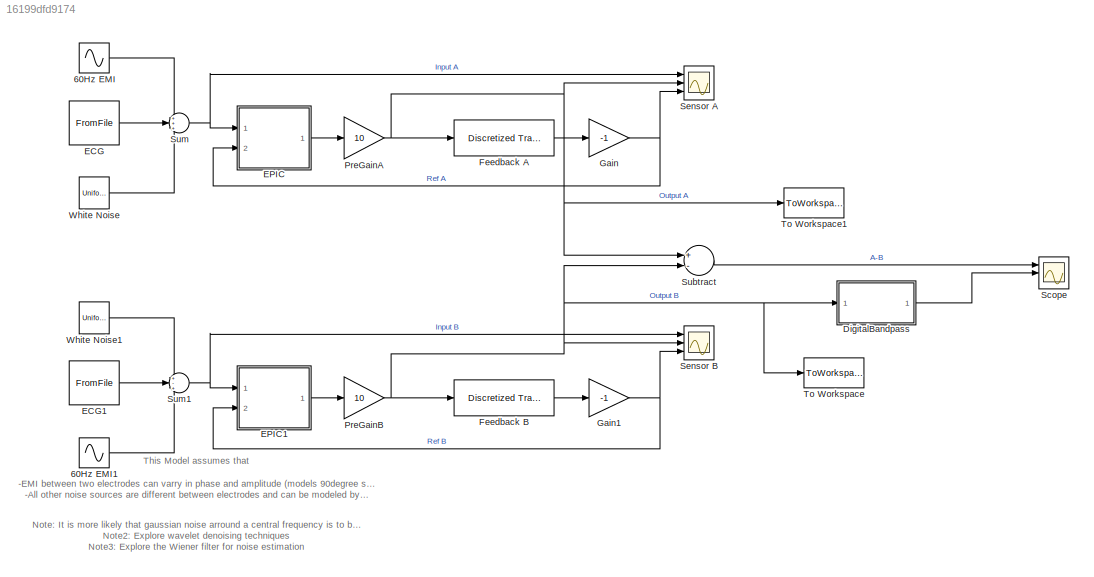
MODEL slx_16199dfd9174
KIND model
CONFIG AbsTol = auto
CONFIG EnableMultiTasking = on
CONFIG FixedStep = 0.0001
CONFIG MaxStep = auto
CONFIG MinStep = auto
CONFIG RelTol = 1e-3
CONFIG SampleTimeConstraint = Unconstrained
CONFIG Solver = ode15s
CONFIG SolverName = ode15s
CONFIG StartTime = 0.0
CONFIG StopTime = 7
BLOCK [Sin] 60Hz EMI
  Amplitude = 0.3
  Frequency = 377
  Ports = [0, 1]
  SampleTime = 0.0001
BLOCK [Sin] 60Hz EMI1
  Amplitude = 0.35
  Frequency = 377
  Phase = 1.97
  Ports = [0, 1]
  SampleTime = 0.0001
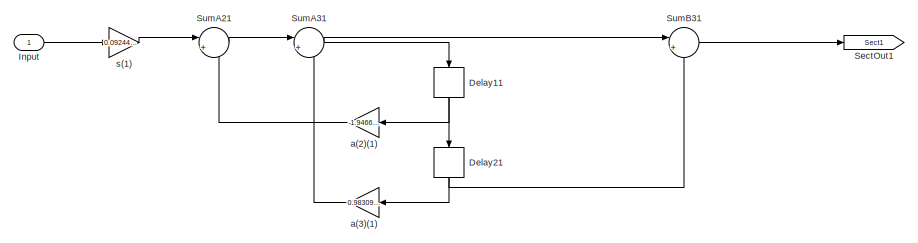
[diagram: DigitalBandpass - part 1/33, left side, full height]
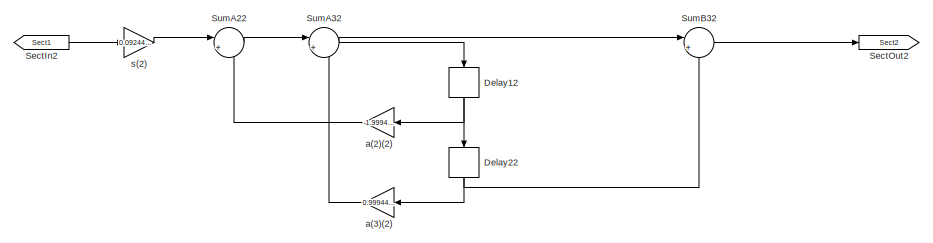
[diagram: DigitalBandpass - part 2/33, left side, full height]
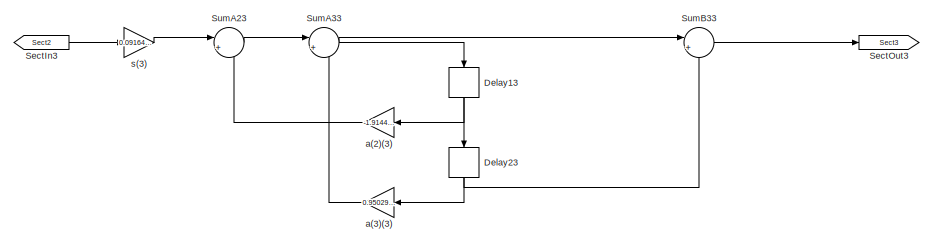
[diagram: DigitalBandpass - part 3/33, left side, full height]
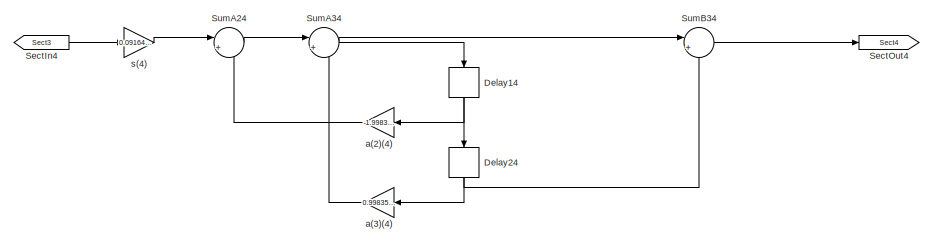
[diagram: DigitalBandpass - part 4/33, left side, full height]
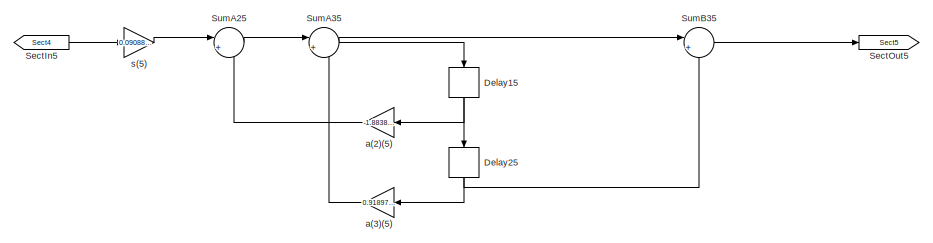
[diagram: DigitalBandpass - part 5/33, left side, full height]
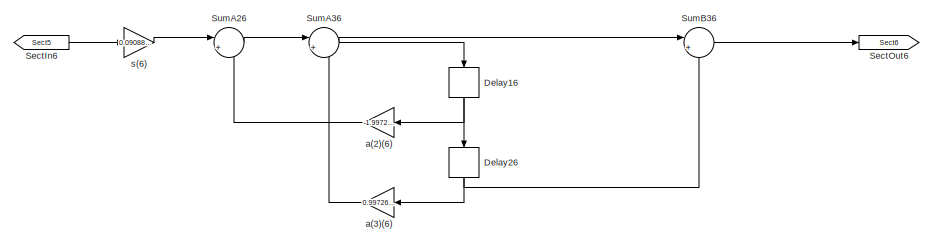
[diagram: DigitalBandpass - part 6/33, left side, full height]
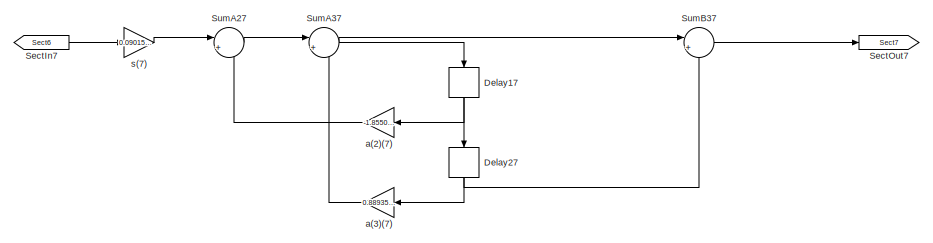
[diagram: DigitalBandpass - part 7/33, left side, full height]
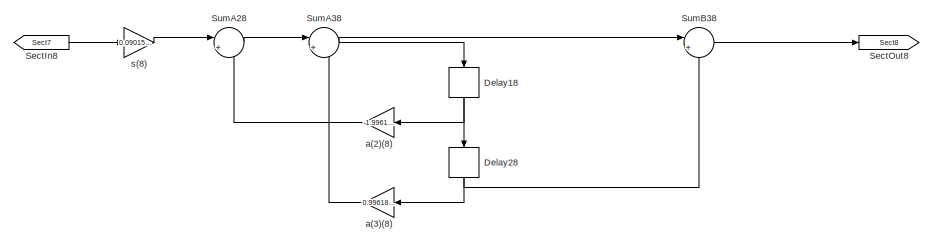
[diagram: DigitalBandpass - part 8/33, left side, full height]
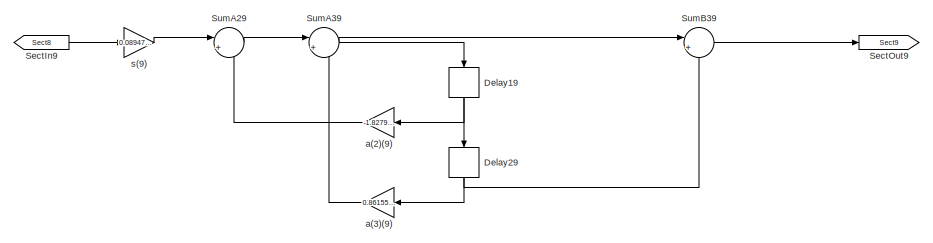
[diagram: DigitalBandpass - part 9/33, left side, full height]
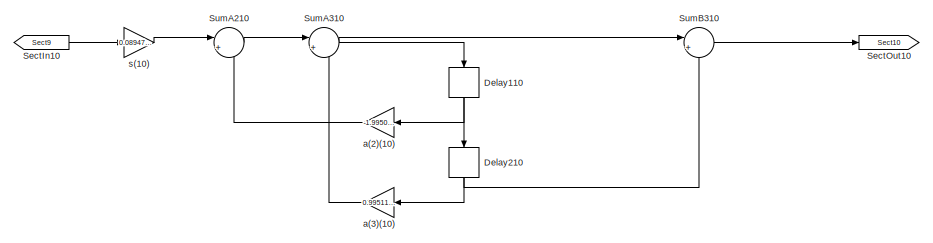
[diagram: DigitalBandpass - part 10/33, left side, full height]
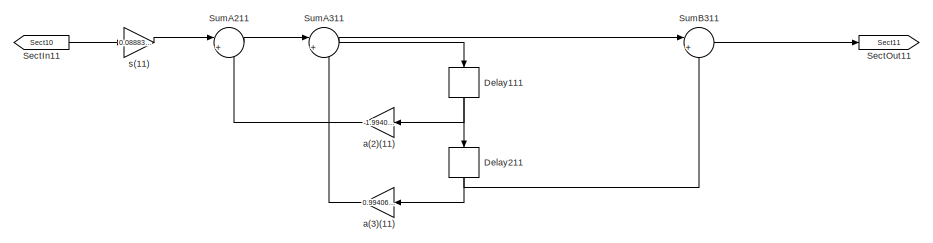
[diagram: DigitalBandpass - part 11/33, left side, full height]
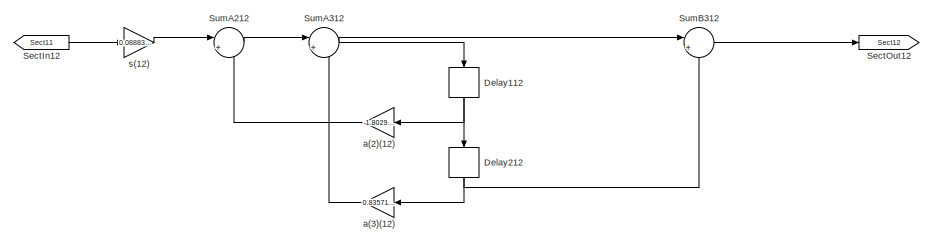
[diagram: DigitalBandpass - part 12/33, center side, full height]
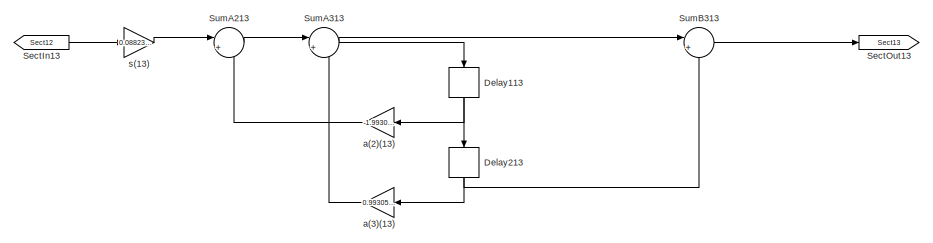
[diagram: DigitalBandpass - part 13/33, center side, full height]
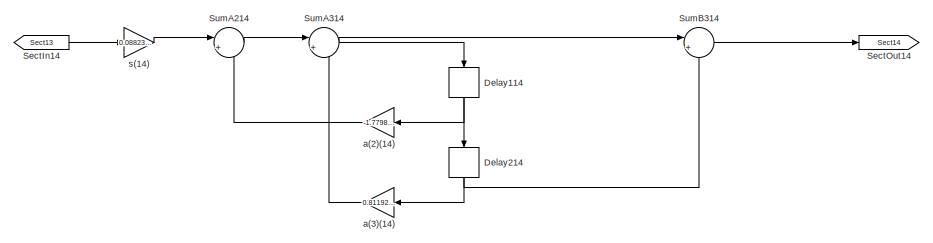
[diagram: DigitalBandpass - part 14/33, center side, full height]
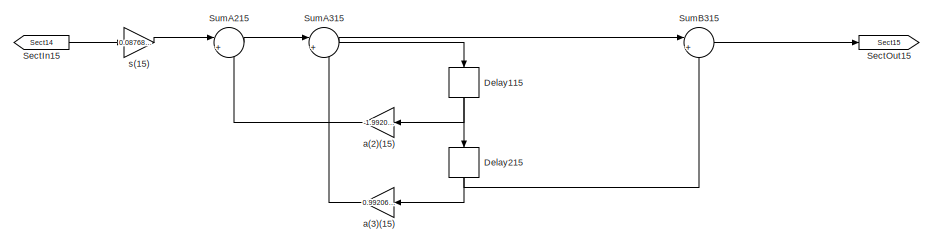
[diagram: DigitalBandpass - part 15/33, center side, full height]
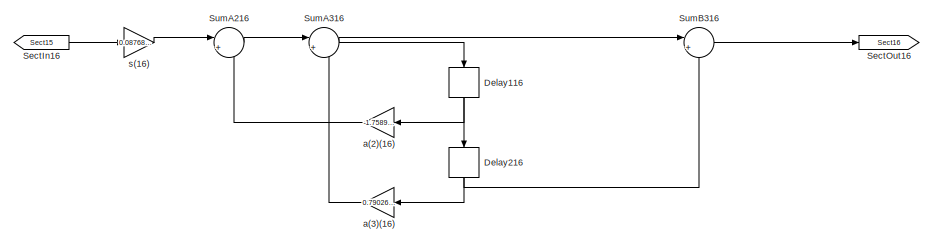
[diagram: DigitalBandpass - part 16/33, center side, full height]
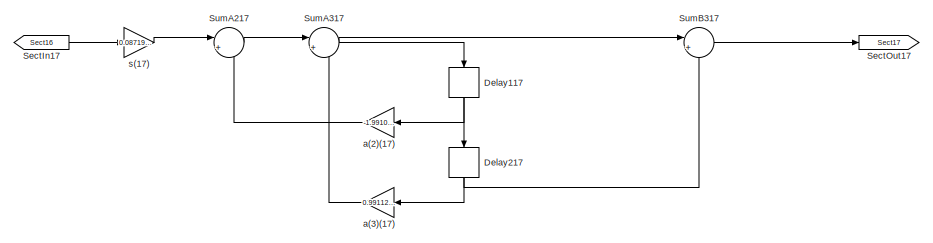
[diagram: DigitalBandpass - part 17/33, center side, full height]
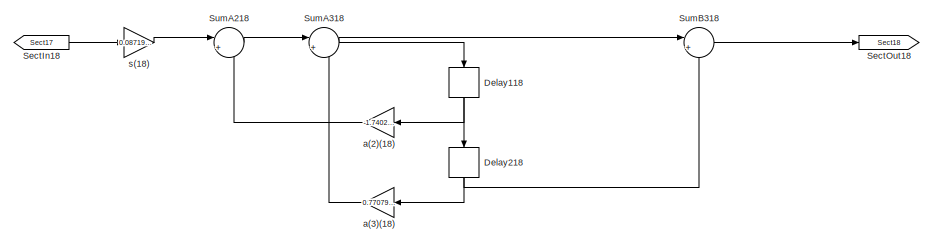
[diagram: DigitalBandpass - part 18/33, center side, full height]
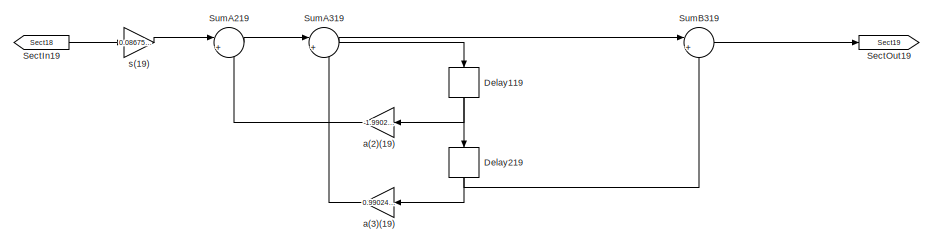
[diagram: DigitalBandpass - part 19/33, center side, full height]
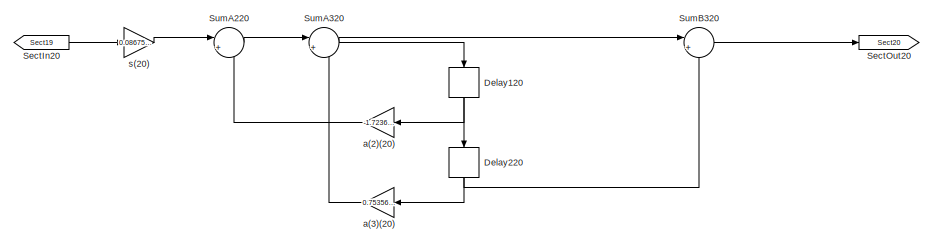
[diagram: DigitalBandpass - part 20/33, center side, full height]
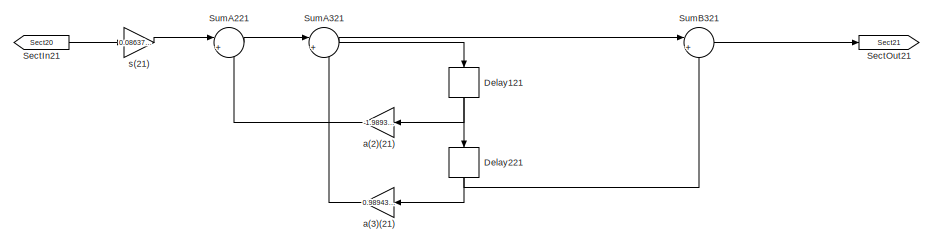
[diagram: DigitalBandpass - part 21/33, center side, full height]
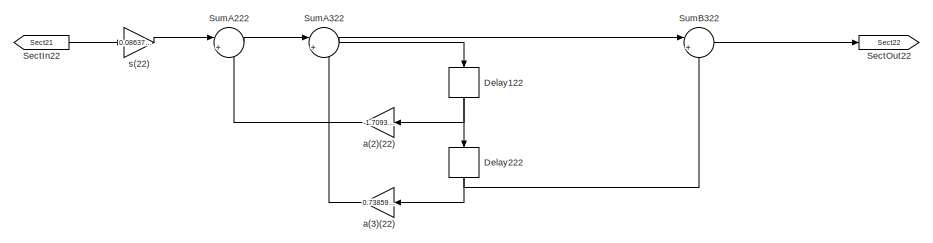
[diagram: DigitalBandpass - part 22/33, center side, full height]
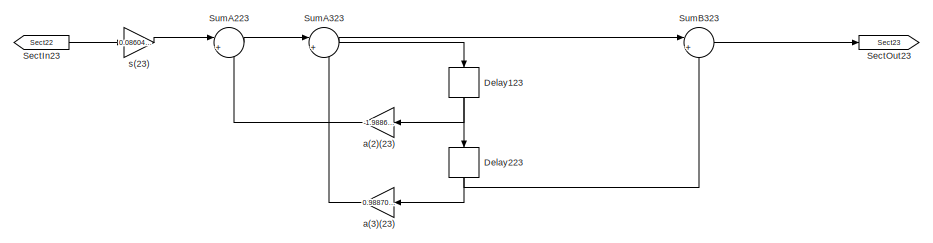
[diagram: DigitalBandpass - part 23/33, right side, full height]
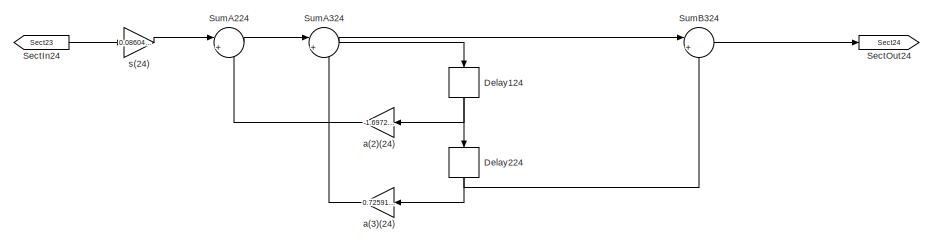
[diagram: DigitalBandpass - part 24/33, right side, full height]
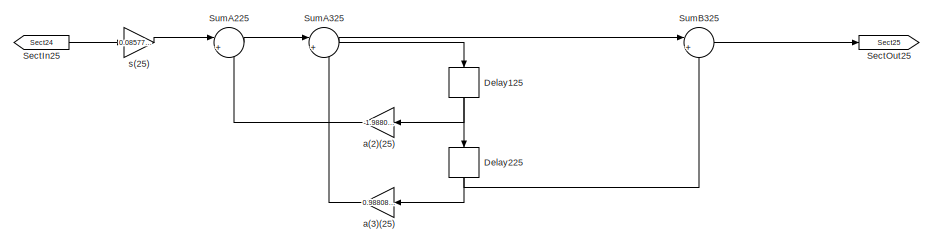
[diagram: DigitalBandpass - part 25/33, right side, full height]
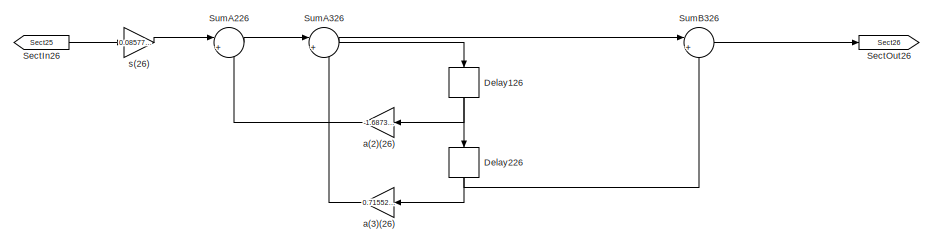
[diagram: DigitalBandpass - part 26/33, right side, full height]
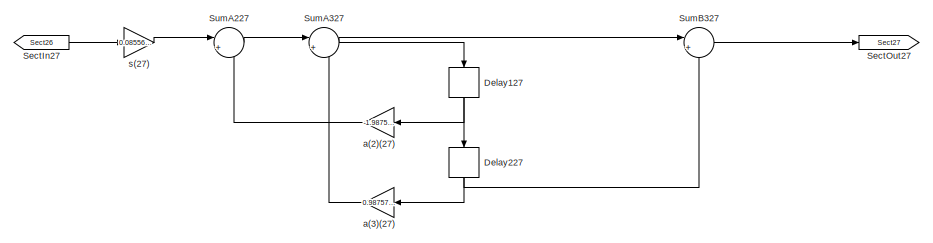
[diagram: DigitalBandpass - part 27/33, right side, full height]
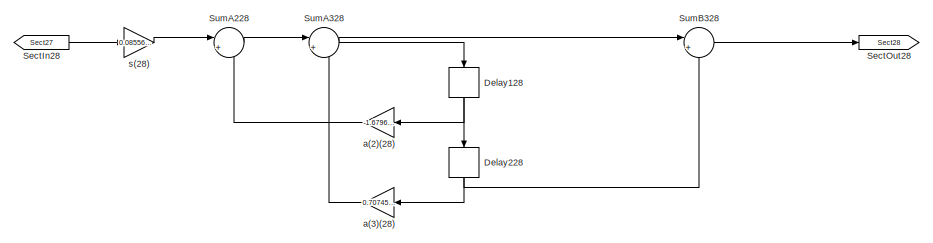
[diagram: DigitalBandpass - part 28/33, right side, full height]
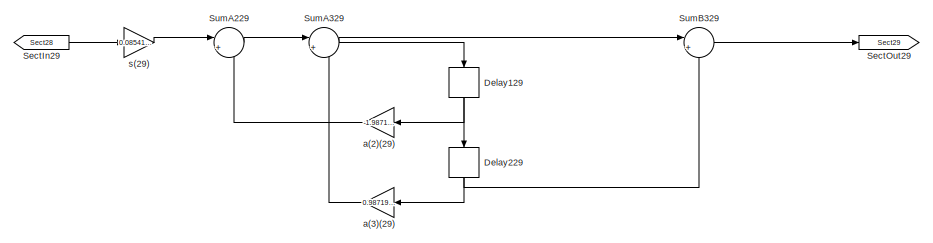
[diagram: DigitalBandpass - part 29/33, right side, full height]
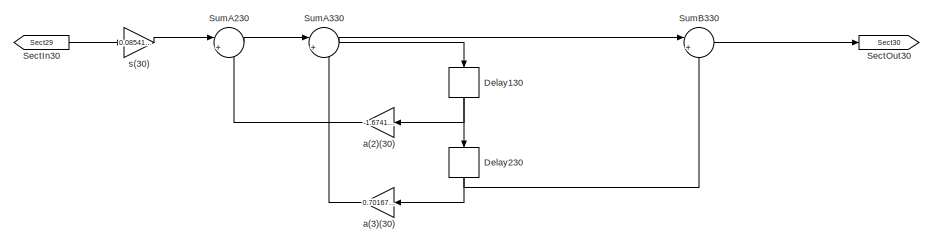
[diagram: DigitalBandpass - part 30/33, right side, full height]
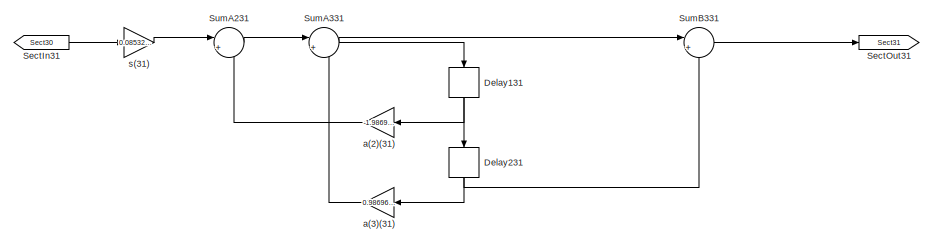
[diagram: DigitalBandpass - part 31/33, right side, full height]
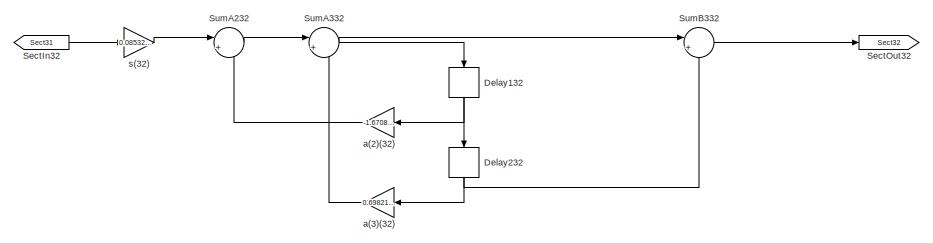
[diagram: DigitalBandpass - part 32/33, right side, full height]
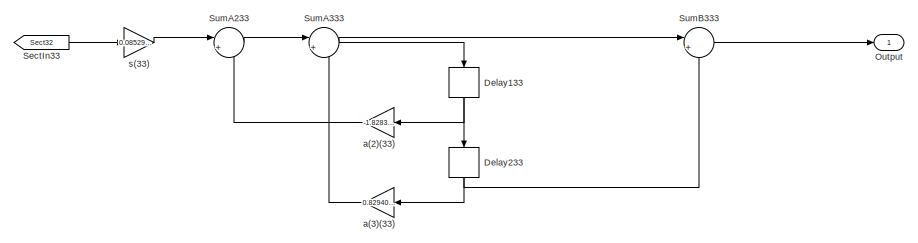
[diagram: DigitalBandpass - part 33/33, right side, full height]
BLOCK [SubSystem] DigitalBandpass
  ErrorFcn = dspFilterRealizedInBasicElemsAlgLoopErrFcnCallback
  Ports = [1, 1]
  RequestExecContextInheritance = off
  Tag = FilterWizardSubSystem
  UserDataPersistent = on
BLOCK [Delay] DigitalBandpass/Delay11
  DelayLength = 1
  InitialCondition = 0
  InputPortMap = u0
  Ports = [1, 1]
BLOCK [Delay] DigitalBandpass/Delay110
  DelayLength = 1
  InitialCondition = 0
  InputPortMap = u0
  Ports = [1, 1]
BLOCK [Delay] DigitalBandpass/Delay111
  DelayLength = 1
  InitialCondition = 0
  InputPortMap = u0
  Ports = [1, 1]
BLOCK [Delay] DigitalBandpass/Delay112
  DelayLength = 1
  InitialCondition = 0
  InputPortMap = u0
  Ports = [1, 1]
BLOCK [Delay] DigitalBandpass/Delay113
  DelayLength = 1
  InitialCondition = 0
  InputPortMap = u0
  Ports = [1, 1]
BLOCK [Delay] DigitalBandpass/Delay114
  DelayLength = 1
  InitialCondition = 0
  InputPortMap = u0
  Ports = [1, 1]
BLOCK [Delay] DigitalBandpass/Delay115
  DelayLength = 1
  InitialCondition = 0
  InputPortMap = u0
  Ports = [1, 1]
BLOCK [Delay] DigitalBandpass/Delay116
  DelayLength = 1
  InitialCondition = 0
  InputPortMap = u0
  Ports = [1, 1]
BLOCK [Delay] DigitalBandpass/Delay117
  DelayLength = 1
  InitialCondition = 0
  InputPortMap = u0
  Ports = [1, 1]
BLOCK [Delay] DigitalBandpass/Delay118
  DelayLength = 1
  InitialCondition = 0
  InputPortMap = u0
  Ports = [1, 1]
BLOCK [Delay] DigitalBandpass/Delay119
  DelayLength = 1
  InitialCondition = 0
  InputPortMap = u0
  Ports = [1, 1]
BLOCK [Delay] DigitalBandpass/Delay12
  DelayLength = 1
  InitialCondition = 0
  InputPortMap = u0
  Ports = [1, 1]
BLOCK [Delay] DigitalBandpass/Delay120
  DelayLength = 1
  InitialCondition = 0
  InputPortMap = u0
  Ports = [1, 1]
BLOCK [Delay] DigitalBandpass/Delay121
  DelayLength = 1
  InitialCondition = 0
  InputPortMap = u0
  Ports = [1, 1]
BLOCK [Delay] DigitalBandpass/Delay122
  DelayLength = 1
  InitialCondition = 0
  InputPortMap = u0
  Ports = [1, 1]
BLOCK [Delay] DigitalBandpass/Delay123
  DelayLength = 1
  InitialCondition = 0
  InputPortMap = u0
  Ports = [1, 1]
BLOCK [Delay] DigitalBandpass/Delay124
  DelayLength = 1
  InitialCondition = 0
  InputPortMap = u0
  Ports = [1, 1]
BLOCK [Delay] DigitalBandpass/Delay125
  DelayLength = 1
  InitialCondition = 0
  InputPortMap = u0
  Ports = [1, 1]
BLOCK [Delay] DigitalBandpass/Delay126
  DelayLength = 1
  InitialCondition = 0
  InputPortMap = u0
  Ports = [1, 1]
BLOCK [Delay] DigitalBandpass/Delay127
  DelayLength = 1
  InitialCondition = 0
  InputPortMap = u0
  Ports = [1, 1]
BLOCK [Delay] DigitalBandpass/Delay128
  DelayLength = 1
  InitialCondition = 0
  InputPortMap = u0
  Ports = [1, 1]
BLOCK [Delay] DigitalBandpass/Delay129
  DelayLength = 1
  InitialCondition = 0
  InputPortMap = u0
  Ports = [1, 1]
BLOCK [Delay] DigitalBandpass/Delay13
  DelayLength = 1
  InitialCondition = 0
  InputPortMap = u0
  Ports = [1, 1]
BLOCK [Delay] DigitalBandpass/Delay130
  DelayLength = 1
  InitialCondition = 0
  InputPortMap = u0
  Ports = [1, 1]
BLOCK [Delay] DigitalBandpass/Delay131
  DelayLength = 1
  InitialCondition = 0
  InputPortMap = u0
  Ports = [1, 1]
BLOCK [Delay] DigitalBandpass/Delay132
  DelayLength = 1
  InitialCondition = 0
  InputPortMap = u0
  Ports = [1, 1]
BLOCK [Delay] DigitalBandpass/Delay133
  DelayLength = 1
  InitialCondition = 0
  InputPortMap = u0
  Ports = [1, 1]
BLOCK [Delay] DigitalBandpass/Delay14
  DelayLength = 1
  InitialCondition = 0
  InputPortMap = u0
  Ports = [1, 1]
BLOCK [Delay] DigitalBandpass/Delay15
  DelayLength = 1
  InitialCondition = 0
  InputPortMap = u0
  Ports = [1, 1]
BLOCK [Delay] DigitalBandpass/Delay16
  DelayLength = 1
  InitialCondition = 0
  InputPortMap = u0
  Ports = [1, 1]
BLOCK [Delay] DigitalBandpass/Delay17
  DelayLength = 1
  InitialCondition = 0
  InputPortMap = u0
  Ports = [1, 1]
BLOCK [Delay] DigitalBandpass/Delay18
  DelayLength = 1
  InitialCondition = 0
  InputPortMap = u0
  Ports = [1, 1]
BLOCK [Delay] DigitalBandpass/Delay19
  DelayLength = 1
  InitialCondition = 0
  InputPortMap = u0
  Ports = [1, 1]
BLOCK [Delay] DigitalBandpass/Delay21
  DelayLength = 1
  InitialCondition = 0
  InputPortMap = u0
  Ports = [1, 1]
BLOCK [Delay] DigitalBandpass/Delay210
  DelayLength = 1
  InitialCondition = 0
  InputPortMap = u0
  Ports = [1, 1]
BLOCK [Delay] DigitalBandpass/Delay211
  DelayLength = 1
  InitialCondition = 0
  InputPortMap = u0
  Ports = [1, 1]
BLOCK [Delay] DigitalBandpass/Delay212
  DelayLength = 1
  InitialCondition = 0
  InputPortMap = u0
  Ports = [1, 1]
BLOCK [Delay] DigitalBandpass/Delay213
  DelayLength = 1
  InitialCondition = 0
  InputPortMap = u0
  Ports = [1, 1]
BLOCK [Delay] DigitalBandpass/Delay214
  DelayLength = 1
  InitialCondition = 0
  InputPortMap = u0
  Ports = [1, 1]
BLOCK [Delay] DigitalBandpass/Delay215
  DelayLength = 1
  InitialCondition = 0
  InputPortMap = u0
  Ports = [1, 1]
BLOCK [Delay] DigitalBandpass/Delay216
  DelayLength = 1
  InitialCondition = 0
  InputPortMap = u0
  Ports = [1, 1]
BLOCK [Delay] DigitalBandpass/Delay217
  DelayLength = 1
  InitialCondition = 0
  InputPortMap = u0
  Ports = [1, 1]
BLOCK [Delay] DigitalBandpass/Delay218
  DelayLength = 1
  InitialCondition = 0
  InputPortMap = u0
  Ports = [1, 1]
BLOCK [Delay] DigitalBandpass/Delay219
  DelayLength = 1
  InitialCondition = 0
  InputPortMap = u0
  Ports = [1, 1]
BLOCK [Delay] DigitalBandpass/Delay22
  DelayLength = 1
  InitialCondition = 0
  InputPortMap = u0
  Ports = [1, 1]
BLOCK [Delay] DigitalBandpass/Delay220
  DelayLength = 1
  InitialCondition = 0
  InputPortMap = u0
  Ports = [1, 1]
BLOCK [Delay] DigitalBandpass/Delay221
  DelayLength = 1
  InitialCondition = 0
  InputPortMap = u0
  Ports = [1, 1]
BLOCK [Delay] DigitalBandpass/Delay222
  DelayLength = 1
  InitialCondition = 0
  InputPortMap = u0
  Ports = [1, 1]
BLOCK [Delay] DigitalBandpass/Delay223
  DelayLength = 1
  InitialCondition = 0
  InputPortMap = u0
  Ports = [1, 1]
BLOCK [Delay] DigitalBandpass/Delay224
  DelayLength = 1
  InitialCondition = 0
  InputPortMap = u0
  Ports = [1, 1]
BLOCK [Delay] DigitalBandpass/Delay225
  DelayLength = 1
  InitialCondition = 0
  InputPortMap = u0
  Ports = [1, 1]
BLOCK [Delay] DigitalBandpass/Delay226
  DelayLength = 1
  InitialCondition = 0
  InputPortMap = u0
  Ports = [1, 1]
BLOCK [Delay] DigitalBandpass/Delay227
  DelayLength = 1
  InitialCondition = 0
  InputPortMap = u0
  Ports = [1, 1]
BLOCK [Delay] DigitalBandpass/Delay228
  DelayLength = 1
  InitialCondition = 0
  InputPortMap = u0
  Ports = [1, 1]
BLOCK [Delay] DigitalBandpass/Delay229
  DelayLength = 1
  InitialCondition = 0
  InputPortMap = u0
  Ports = [1, 1]
BLOCK [Delay] DigitalBandpass/Delay23
  DelayLength = 1
  InitialCondition = 0
  InputPortMap = u0
  Ports = [1, 1]
BLOCK [Delay] DigitalBandpass/Delay230
  DelayLength = 1
  InitialCondition = 0
  InputPortMap = u0
  Ports = [1, 1]
BLOCK [Delay] DigitalBandpass/Delay231
  DelayLength = 1
  InitialCondition = 0
  InputPortMap = u0
  Ports = [1, 1]
BLOCK [Delay] DigitalBandpass/Delay232
  DelayLength = 1
  InitialCondition = 0
  InputPortMap = u0
  Ports = [1, 1]
BLOCK [Delay] DigitalBandpass/Delay233
  DelayLength = 1
  InitialCondition = 0
  InputPortMap = u0
  Ports = [1, 1]
BLOCK [Delay] DigitalBandpass/Delay24
  DelayLength = 1
  InitialCondition = 0
  InputPortMap = u0
  Ports = [1, 1]
BLOCK [Delay] DigitalBandpass/Delay25
  DelayLength = 1
  InitialCondition = 0
  InputPortMap = u0
  Ports = [1, 1]
BLOCK [Delay] DigitalBandpass/Delay26
  DelayLength = 1
  InitialCondition = 0
  InputPortMap = u0
  Ports = [1, 1]
BLOCK [Delay] DigitalBandpass/Delay27
  DelayLength = 1
  InitialCondition = 0
  InputPortMap = u0
  Ports = [1, 1]
BLOCK [Delay] DigitalBandpass/Delay28
  DelayLength = 1
  InitialCondition = 0
  InputPortMap = u0
  Ports = [1, 1]
BLOCK [Delay] DigitalBandpass/Delay29
  DelayLength = 1
  InitialCondition = 0
  InputPortMap = u0
  Ports = [1, 1]
BLOCK [Inport] DigitalBandpass/Input
  IconDisplay = Port number
BLOCK [Outport] DigitalBandpass/Output
  IconDisplay = Port number
BLOCK [From] DigitalBandpass/SectIn10
  GotoTag = Sect9
BLOCK [From] DigitalBandpass/SectIn11
  GotoTag = Sect10
BLOCK [From] DigitalBandpass/SectIn12
  GotoTag = Sect11
BLOCK [From] DigitalBandpass/SectIn13
  GotoTag = Sect12
BLOCK [From] DigitalBandpass/SectIn14
  GotoTag = Sect13
BLOCK [From] DigitalBandpass/SectIn15
  GotoTag = Sect14
BLOCK [From] DigitalBandpass/SectIn16
  GotoTag = Sect15
BLOCK [From] DigitalBandpass/SectIn17
  GotoTag = Sect16
BLOCK [From] DigitalBandpass/SectIn18
  GotoTag = Sect17
BLOCK [From] DigitalBandpass/SectIn19
  GotoTag = Sect18
BLOCK [From] DigitalBandpass/SectIn2
  GotoTag = Sect1
BLOCK [From] DigitalBandpass/SectIn20
  GotoTag = Sect19
BLOCK [From] DigitalBandpass/SectIn21
  GotoTag = Sect20
BLOCK [From] DigitalBandpass/SectIn22
  GotoTag = Sect21
BLOCK [From] DigitalBandpass/SectIn23
  GotoTag = Sect22
BLOCK [From] DigitalBandpass/SectIn24
  GotoTag = Sect23
BLOCK [From] DigitalBandpass/SectIn25
  GotoTag = Sect24
BLOCK [From] DigitalBandpass/SectIn26
  GotoTag = Sect25
BLOCK [From] DigitalBandpass/SectIn27
  GotoTag = Sect26
BLOCK [From] DigitalBandpass/SectIn28
  GotoTag = Sect27
BLOCK [From] DigitalBandpass/SectIn29
  GotoTag = Sect28
BLOCK [From] DigitalBandpass/SectIn3
  GotoTag = Sect2
BLOCK [From] DigitalBandpass/SectIn30
  GotoTag = Sect29
BLOCK [From] DigitalBandpass/SectIn31
  GotoTag = Sect30
BLOCK [From] DigitalBandpass/SectIn32
  GotoTag = Sect31
BLOCK [From] DigitalBandpass/SectIn33
  GotoTag = Sect32
BLOCK [From] DigitalBandpass/SectIn4
  GotoTag = Sect3
BLOCK [From] DigitalBandpass/SectIn5
  GotoTag = Sect4
BLOCK [From] DigitalBandpass/SectIn6
  GotoTag = Sect5
BLOCK [From] DigitalBandpass/SectIn7
  GotoTag = Sect6
BLOCK [From] DigitalBandpass/SectIn8
  GotoTag = Sect7
BLOCK [From] DigitalBandpass/SectIn9
  GotoTag = Sect8
BLOCK [Goto] DigitalBandpass/SectOut1
  GotoTag = Sect1
BLOCK [Goto] DigitalBandpass/SectOut10
  GotoTag = Sect10
BLOCK [Goto] DigitalBandpass/SectOut11
  GotoTag = Sect11
BLOCK [Goto] DigitalBandpass/SectOut12
  GotoTag = Sect12
BLOCK [Goto] DigitalBandpass/SectOut13
  GotoTag = Sect13
BLOCK [Goto] DigitalBandpass/SectOut14
  GotoTag = Sect14
BLOCK [Goto] DigitalBandpass/SectOut15
  GotoTag = Sect15
BLOCK [Goto] DigitalBandpass/SectOut16
  GotoTag = Sect16
BLOCK [Goto] DigitalBandpass/SectOut17
  GotoTag = Sect17
BLOCK [Goto] DigitalBandpass/SectOut18
  GotoTag = Sect18
BLOCK [Goto] DigitalBandpass/SectOut19
  GotoTag = Sect19
BLOCK [Goto] DigitalBandpass/SectOut2
  GotoTag = Sect2
BLOCK [Goto] DigitalBandpass/SectOut20
  GotoTag = Sect20
BLOCK [Goto] DigitalBandpass/SectOut21
  GotoTag = Sect21
BLOCK [Goto] DigitalBandpass/SectOut22
  GotoTag = Sect22
BLOCK [Goto] DigitalBandpass/SectOut23
  GotoTag = Sect23
BLOCK [Goto] DigitalBandpass/SectOut24
  GotoTag = Sect24
BLOCK [Goto] DigitalBandpass/SectOut25
  GotoTag = Sect25
BLOCK [Goto] DigitalBandpass/SectOut26
  GotoTag = Sect26
BLOCK [Goto] DigitalBandpass/SectOut27
  GotoTag = Sect27
BLOCK [Goto] DigitalBandpass/SectOut28
  GotoTag = Sect28
BLOCK [Goto] DigitalBandpass/SectOut29
  GotoTag = Sect29
BLOCK [Goto] DigitalBandpass/SectOut3
  GotoTag = Sect3
BLOCK [Goto] DigitalBandpass/SectOut30
  GotoTag = Sect30
BLOCK [Goto] DigitalBandpass/SectOut31
  GotoTag = Sect31
BLOCK [Goto] DigitalBandpass/SectOut32
  GotoTag = Sect32
BLOCK [Goto] DigitalBandpass/SectOut4
  GotoTag = Sect4
BLOCK [Goto] DigitalBandpass/SectOut5
  GotoTag = Sect5
BLOCK [Goto] DigitalBandpass/SectOut6
  GotoTag = Sect6
BLOCK [Goto] DigitalBandpass/SectOut7
  GotoTag = Sect7
BLOCK [Goto] DigitalBandpass/SectOut8
  GotoTag = Sect8
BLOCK [Goto] DigitalBandpass/SectOut9
  GotoTag = Sect9
BLOCK [Sum] DigitalBandpass/SumA21
  IconShape = round
  InputSameDT = off
  Inputs = |+-
  Ports = [2, 1]
  RndMeth = Nearest
BLOCK [Sum] DigitalBandpass/SumA210
  IconShape = round
  InputSameDT = off
  Inputs = |+-
  Ports = [2, 1]
  RndMeth = Nearest
BLOCK [Sum] DigitalBandpass/SumA211
  IconShape = round
  InputSameDT = off
  Inputs = |+-
  Ports = [2, 1]
  RndMeth = Nearest
BLOCK [Sum] DigitalBandpass/SumA212
  IconShape = round
  InputSameDT = off
  Inputs = |+-
  Ports = [2, 1]
  RndMeth = Nearest
BLOCK [Sum] DigitalBandpass/SumA213
  IconShape = round
  InputSameDT = off
  Inputs = |+-
  Ports = [2, 1]
  RndMeth = Nearest
BLOCK [Sum] DigitalBandpass/SumA214
  IconShape = round
  InputSameDT = off
  Inputs = |+-
  Ports = [2, 1]
  RndMeth = Nearest
BLOCK [Sum] DigitalBandpass/SumA215
  IconShape = round
  InputSameDT = off
  Inputs = |+-
  Ports = [2, 1]
  RndMeth = Nearest
BLOCK [Sum] DigitalBandpass/SumA216
  IconShape = round
  InputSameDT = off
  Inputs = |+-
  Ports = [2, 1]
  RndMeth = Nearest
BLOCK [Sum] DigitalBandpass/SumA217
  IconShape = round
  InputSameDT = off
  Inputs = |+-
  Ports = [2, 1]
  RndMeth = Nearest
BLOCK [Sum] DigitalBandpass/SumA218
  IconShape = round
  InputSameDT = off
  Inputs = |+-
  Ports = [2, 1]
  RndMeth = Nearest
BLOCK [Sum] DigitalBandpass/SumA219
  IconShape = round
  InputSameDT = off
  Inputs = |+-
  Ports = [2, 1]
  RndMeth = Nearest
BLOCK [Sum] DigitalBandpass/SumA22
  IconShape = round
  InputSameDT = off
  Inputs = |+-
  Ports = [2, 1]
  RndMeth = Nearest
BLOCK [Sum] DigitalBandpass/SumA220
  IconShape = round
  InputSameDT = off
  Inputs = |+-
  Ports = [2, 1]
  RndMeth = Nearest
BLOCK [Sum] DigitalBandpass/SumA221
  IconShape = round
  InputSameDT = off
  Inputs = |+-
  Ports = [2, 1]
  RndMeth = Nearest
BLOCK [Sum] DigitalBandpass/SumA222
  IconShape = round
  InputSameDT = off
  Inputs = |+-
  Ports = [2, 1]
  RndMeth = Nearest
BLOCK [Sum] DigitalBandpass/SumA223
  IconShape = round
  InputSameDT = off
  Inputs = |+-
  Ports = [2, 1]
  RndMeth = Nearest
BLOCK [Sum] DigitalBandpass/SumA224
  IconShape = round
  InputSameDT = off
  Inputs = |+-
  Ports = [2, 1]
  RndMeth = Nearest
BLOCK [Sum] DigitalBandpass/SumA225
  IconShape = round
  InputSameDT = off
  Inputs = |+-
  Ports = [2, 1]
  RndMeth = Nearest
BLOCK [Sum] DigitalBandpass/SumA226
  IconShape = round
  InputSameDT = off
  Inputs = |+-
  Ports = [2, 1]
  RndMeth = Nearest
BLOCK [Sum] DigitalBandpass/SumA227
  IconShape = round
  InputSameDT = off
  Inputs = |+-
  Ports = [2, 1]
  RndMeth = Nearest
BLOCK [Sum] DigitalBandpass/SumA228
  IconShape = round
  InputSameDT = off
  Inputs = |+-
  Ports = [2, 1]
  RndMeth = Nearest
BLOCK [Sum] DigitalBandpass/SumA229
  IconShape = round
  InputSameDT = off
  Inputs = |+-
  Ports = [2, 1]
  RndMeth = Nearest
BLOCK [Sum] DigitalBandpass/SumA23
  IconShape = round
  InputSameDT = off
  Inputs = |+-
  Ports = [2, 1]
  RndMeth = Nearest
BLOCK [Sum] DigitalBandpass/SumA230
  IconShape = round
  InputSameDT = off
  Inputs = |+-
  Ports = [2, 1]
  RndMeth = Nearest
BLOCK [Sum] DigitalBandpass/SumA231
  IconShape = round
  InputSameDT = off
  Inputs = |+-
  Ports = [2, 1]
  RndMeth = Nearest
BLOCK [Sum] DigitalBandpass/SumA232
  IconShape = round
  InputSameDT = off
  Inputs = |+-
  Ports = [2, 1]
  RndMeth = Nearest
BLOCK [Sum] DigitalBandpass/SumA233
  IconShape = round
  InputSameDT = off
  Inputs = |+-
  Ports = [2, 1]
  RndMeth = Nearest
BLOCK [Sum] DigitalBandpass/SumA24
  IconShape = round
  InputSameDT = off
  Inputs = |+-
  Ports = [2, 1]
  RndMeth = Nearest
BLOCK [Sum] DigitalBandpass/SumA25
  IconShape = round
  InputSameDT = off
  Inputs = |+-
  Ports = [2, 1]
  RndMeth = Nearest
BLOCK [Sum] DigitalBandpass/SumA26
  IconShape = round
  InputSameDT = off
  Inputs = |+-
  Ports = [2, 1]
  RndMeth = Nearest
BLOCK [Sum] DigitalBandpass/SumA27
  IconShape = round
  InputSameDT = off
  Inputs = |+-
  Ports = [2, 1]
  RndMeth = Nearest
BLOCK [Sum] DigitalBandpass/SumA28
  IconShape = round
  InputSameDT = off
  Inputs = |+-
  Ports = [2, 1]
  RndMeth = Nearest
BLOCK [Sum] DigitalBandpass/SumA29
  IconShape = round
  InputSameDT = off
  Inputs = |+-
  Ports = [2, 1]
  RndMeth = Nearest
BLOCK [Sum] DigitalBandpass/SumA31
  IconShape = round
  InputSameDT = off
  Inputs = |+-
  Ports = [2, 1]
  RndMeth = Nearest
BLOCK [Sum] DigitalBandpass/SumA310
  IconShape = round
  InputSameDT = off
  Inputs = |+-
  Ports = [2, 1]
  RndMeth = Nearest
BLOCK [Sum] DigitalBandpass/SumA311
  IconShape = round
  InputSameDT = off
  Inputs = |+-
  Ports = [2, 1]
  RndMeth = Nearest
BLOCK [Sum] DigitalBandpass/SumA312
  IconShape = round
  InputSameDT = off
  Inputs = |+-
  Ports = [2, 1]
  RndMeth = Nearest
BLOCK [Sum] DigitalBandpass/SumA313
  IconShape = round
  InputSameDT = off
  Inputs = |+-
  Ports = [2, 1]
  RndMeth = Nearest
BLOCK [Sum] DigitalBandpass/SumA314
  IconShape = round
  InputSameDT = off
  Inputs = |+-
  Ports = [2, 1]
  RndMeth = Nearest
BLOCK [Sum] DigitalBandpass/SumA315
  IconShape = round
  InputSameDT = off
  Inputs = |+-
  Ports = [2, 1]
  RndMeth = Nearest
BLOCK [Sum] DigitalBandpass/SumA316
  IconShape = round
  InputSameDT = off
  Inputs = |+-
  Ports = [2, 1]
  RndMeth = Nearest
BLOCK [Sum] DigitalBandpass/SumA317
  IconShape = round
  InputSameDT = off
  Inputs = |+-
  Ports = [2, 1]
  RndMeth = Nearest
BLOCK [Sum] DigitalBandpass/SumA318
  IconShape = round
  InputSameDT = off
  Inputs = |+-
  Ports = [2, 1]
  RndMeth = Nearest
BLOCK [Sum] DigitalBandpass/SumA319
  IconShape = round
  InputSameDT = off
  Inputs = |+-
  Ports = [2, 1]
  RndMeth = Nearest
BLOCK [Sum] DigitalBandpass/SumA32
  IconShape = round
  InputSameDT = off
  Inputs = |+-
  Ports = [2, 1]
  RndMeth = Nearest
BLOCK [Sum] DigitalBandpass/SumA320
  IconShape = round
  InputSameDT = off
  Inputs = |+-
  Ports = [2, 1]
  RndMeth = Nearest
BLOCK [Sum] DigitalBandpass/SumA321
  IconShape = round
  InputSameDT = off
  Inputs = |+-
  Ports = [2, 1]
  RndMeth = Nearest
BLOCK [Sum] DigitalBandpass/SumA322
  IconShape = round
  InputSameDT = off
  Inputs = |+-
  Ports = [2, 1]
  RndMeth = Nearest
BLOCK [Sum] DigitalBandpass/SumA323
  IconShape = round
  InputSameDT = off
  Inputs = |+-
  Ports = [2, 1]
  RndMeth = Nearest
BLOCK [Sum] DigitalBandpass/SumA324
  IconShape = round
  InputSameDT = off
  Inputs = |+-
  Ports = [2, 1]
  RndMeth = Nearest
BLOCK [Sum] DigitalBandpass/SumA325
  IconShape = round
  InputSameDT = off
  Inputs = |+-
  Ports = [2, 1]
  RndMeth = Nearest
BLOCK [Sum] DigitalBandpass/SumA326
  IconShape = round
  InputSameDT = off
  Inputs = |+-
  Ports = [2, 1]
  RndMeth = Nearest
BLOCK [Sum] DigitalBandpass/SumA327
  IconShape = round
  InputSameDT = off
  Inputs = |+-
  Ports = [2, 1]
  RndMeth = Nearest
BLOCK [Sum] DigitalBandpass/SumA328
  IconShape = round
  InputSameDT = off
  Inputs = |+-
  Ports = [2, 1]
  RndMeth = Nearest
BLOCK [Sum] DigitalBandpass/SumA329
  IconShape = round
  InputSameDT = off
  Inputs = |+-
  Ports = [2, 1]
  RndMeth = Nearest
BLOCK [Sum] DigitalBandpass/SumA33
  IconShape = round
  InputSameDT = off
  Inputs = |+-
  Ports = [2, 1]
  RndMeth = Nearest
BLOCK [Sum] DigitalBandpass/SumA330
  IconShape = round
  InputSameDT = off
  Inputs = |+-
  Ports = [2, 1]
  RndMeth = Nearest
BLOCK [Sum] DigitalBandpass/SumA331
  IconShape = round
  InputSameDT = off
  Inputs = |+-
  Ports = [2, 1]
  RndMeth = Nearest
BLOCK [Sum] DigitalBandpass/SumA332
  IconShape = round
  InputSameDT = off
  Inputs = |+-
  Ports = [2, 1]
  RndMeth = Nearest
BLOCK [Sum] DigitalBandpass/SumA333
  IconShape = round
  InputSameDT = off
  Inputs = |+-
  Ports = [2, 1]
  RndMeth = Nearest
BLOCK [Sum] DigitalBandpass/SumA34
  IconShape = round
  InputSameDT = off
  Inputs = |+-
  Ports = [2, 1]
  RndMeth = Nearest
BLOCK [Sum] DigitalBandpass/SumA35
  IconShape = round
  InputSameDT = off
  Inputs = |+-
  Ports = [2, 1]
  RndMeth = Nearest
BLOCK [Sum] DigitalBandpass/SumA36
  IconShape = round
  InputSameDT = off
  Inputs = |+-
  Ports = [2, 1]
  RndMeth = Nearest
BLOCK [Sum] DigitalBandpass/SumA37
  IconShape = round
  InputSameDT = off
  Inputs = |+-
  Ports = [2, 1]
  RndMeth = Nearest
BLOCK [Sum] DigitalBandpass/SumA38
  IconShape = round
  InputSameDT = off
  Inputs = |+-
  Ports = [2, 1]
  RndMeth = Nearest
BLOCK [Sum] DigitalBandpass/SumA39
  IconShape = round
  InputSameDT = off
  Inputs = |+-
  Ports = [2, 1]
  RndMeth = Nearest
BLOCK [Sum] DigitalBandpass/SumB31
  IconShape = round
  InputSameDT = off
  Inputs = |+-
  Ports = [2, 1]
  RndMeth = Nearest
BLOCK [Sum] DigitalBandpass/SumB310
  IconShape = round
  InputSameDT = off
  Inputs = |+-
  Ports = [2, 1]
  RndMeth = Nearest
BLOCK [Sum] DigitalBandpass/SumB311
  IconShape = round
  InputSameDT = off
  Inputs = |+-
  Ports = [2, 1]
  RndMeth = Nearest
BLOCK [Sum] DigitalBandpass/SumB312
  IconShape = round
  InputSameDT = off
  Inputs = |+-
  Ports = [2, 1]
  RndMeth = Nearest
BLOCK [Sum] DigitalBandpass/SumB313
  IconShape = round
  InputSameDT = off
  Inputs = |+-
  Ports = [2, 1]
  RndMeth = Nearest
BLOCK [Sum] DigitalBandpass/SumB314
  IconShape = round
  InputSameDT = off
  Inputs = |+-
  Ports = [2, 1]
  RndMeth = Nearest
BLOCK [Sum] DigitalBandpass/SumB315
  IconShape = round
  InputSameDT = off
  Inputs = |+-
  Ports = [2, 1]
  RndMeth = Nearest
BLOCK [Sum] DigitalBandpass/SumB316
  IconShape = round
  InputSameDT = off
  Inputs = |+-
  Ports = [2, 1]
  RndMeth = Nearest
BLOCK [Sum] DigitalBandpass/SumB317
  IconShape = round
  InputSameDT = off
  Inputs = |+-
  Ports = [2, 1]
  RndMeth = Nearest
BLOCK [Sum] DigitalBandpass/SumB318
  IconShape = round
  InputSameDT = off
  Inputs = |+-
  Ports = [2, 1]
  RndMeth = Nearest
BLOCK [Sum] DigitalBandpass/SumB319
  IconShape = round
  InputSameDT = off
  Inputs = |+-
  Ports = [2, 1]
  RndMeth = Nearest
BLOCK [Sum] DigitalBandpass/SumB32
  IconShape = round
  InputSameDT = off
  Inputs = |+-
  Ports = [2, 1]
  RndMeth = Nearest
BLOCK [Sum] DigitalBandpass/SumB320
  IconShape = round
  InputSameDT = off
  Inputs = |+-
  Ports = [2, 1]
  RndMeth = Nearest
BLOCK [Sum] DigitalBandpass/SumB321
  IconShape = round
  InputSameDT = off
  Inputs = |+-
  Ports = [2, 1]
  RndMeth = Nearest
BLOCK [Sum] DigitalBandpass/SumB322
  IconShape = round
  InputSameDT = off
  Inputs = |+-
  Ports = [2, 1]
  RndMeth = Nearest
BLOCK [Sum] DigitalBandpass/SumB323
  IconShape = round
  InputSameDT = off
  Inputs = |+-
  Ports = [2, 1]
  RndMeth = Nearest
BLOCK [Sum] DigitalBandpass/SumB324
  IconShape = round
  InputSameDT = off
  Inputs = |+-
  Ports = [2, 1]
  RndMeth = Nearest
BLOCK [Sum] DigitalBandpass/SumB325
  IconShape = round
  InputSameDT = off
  Inputs = |+-
  Ports = [2, 1]
  RndMeth = Nearest
BLOCK [Sum] DigitalBandpass/SumB326
  IconShape = round
  InputSameDT = off
  Inputs = |+-
  Ports = [2, 1]
  RndMeth = Nearest
BLOCK [Sum] DigitalBandpass/SumB327
  IconShape = round
  InputSameDT = off
  Inputs = |+-
  Ports = [2, 1]
  RndMeth = Nearest
BLOCK [Sum] DigitalBandpass/SumB328
  IconShape = round
  InputSameDT = off
  Inputs = |+-
  Ports = [2, 1]
  RndMeth = Nearest
BLOCK [Sum] DigitalBandpass/SumB329
  IconShape = round
  InputSameDT = off
  Inputs = |+-
  Ports = [2, 1]
  RndMeth = Nearest
BLOCK [Sum] DigitalBandpass/SumB33
  IconShape = round
  InputSameDT = off
  Inputs = |+-
  Ports = [2, 1]
  RndMeth = Nearest
BLOCK [Sum] DigitalBandpass/SumB330
  IconShape = round
  InputSameDT = off
  Inputs = |+-
  Ports = [2, 1]
  RndMeth = Nearest
BLOCK [Sum] DigitalBandpass/SumB331
  IconShape = round
  InputSameDT = off
  Inputs = |+-
  Ports = [2, 1]
  RndMeth = Nearest
BLOCK [Sum] DigitalBandpass/SumB332
  IconShape = round
  InputSameDT = off
  Inputs = |+-
  Ports = [2, 1]
  RndMeth = Nearest
BLOCK [Sum] DigitalBandpass/SumB333
  IconShape = round
  InputSameDT = off
  Inputs = |+-
  Ports = [2, 1]
  RndMeth = Nearest
BLOCK [Sum] DigitalBandpass/SumB34
  IconShape = round
  InputSameDT = off
  Inputs = |+-
  Ports = [2, 1]
  RndMeth = Nearest
BLOCK [Sum] DigitalBandpass/SumB35
  IconShape = round
  InputSameDT = off
  Inputs = |+-
  Ports = [2, 1]
  RndMeth = Nearest
BLOCK [Sum] DigitalBandpass/SumB36
  IconShape = round
  InputSameDT = off
  Inputs = |+-
  Ports = [2, 1]
  RndMeth = Nearest
BLOCK [Sum] DigitalBandpass/SumB37
  IconShape = round
  InputSameDT = off
  Inputs = |+-
  Ports = [2, 1]
  RndMeth = Nearest
BLOCK [Sum] DigitalBandpass/SumB38
  IconShape = round
  InputSameDT = off
  Inputs = |+-
  Ports = [2, 1]
  RndMeth = Nearest
BLOCK [Sum] DigitalBandpass/SumB39
  IconShape = round
  InputSameDT = off
  Inputs = |+-
  Ports = [2, 1]
  RndMeth = Nearest
BLOCK [Gain] DigitalBandpass/a(2)(1)
  Gain = -1.94662160591710576
  ParamDataTypeStr = double
  RndMeth = Nearest
BLOCK [Gain] DigitalBandpass/a(2)(10)
  Gain = -1.99507563765632945
  ParamDataTypeStr = double
  RndMeth = Nearest
BLOCK [Gain] DigitalBandpass/a(2)(11)
  Gain = -1.99402999161732741
  ParamDataTypeStr = double
  RndMeth = Nearest
BLOCK [Gain] DigitalBandpass/a(2)(12)
  Gain = -1.80290649306038642
  ParamDataTypeStr = double
  RndMeth = Nearest
BLOCK [Gain] DigitalBandpass/a(2)(13)
  Gain = -1.99301133689679233
  ParamDataTypeStr = double
  RndMeth = Nearest
BLOCK [Gain] DigitalBandpass/a(2)(14)
  Gain = -1.77988776561854478
  ParamDataTypeStr = double
  RndMeth = Nearest
BLOCK [Gain] DigitalBandpass/a(2)(15)
  Gain = -1.99202771048083949
  ParamDataTypeStr = double
  RndMeth = Nearest
BLOCK [Gain] DigitalBandpass/a(2)(16)
  Gain = -1.75898489700726035
  ParamDataTypeStr = double
  RndMeth = Nearest
BLOCK [Gain] DigitalBandpass/a(2)(17)
  Gain = -1.99108882290856792
  ParamDataTypeStr = double
  RndMeth = Nearest
BLOCK [Gain] DigitalBandpass/a(2)(18)
  Gain = -1.74024460415290072
  ParamDataTypeStr = double
  RndMeth = Nearest
BLOCK [Gain] DigitalBandpass/a(2)(19)
  Gain = -1.99020622534198743
  ParamDataTypeStr = double
  RndMeth = Nearest
BLOCK [Gain] DigitalBandpass/a(2)(2)
  Gain = -1.99941181292600367
  ParamDataTypeStr = double
  RndMeth = Nearest
BLOCK [Gain] DigitalBandpass/a(2)(20)
  Gain = -1.72369787635082083
  ParamDataTypeStr = double
  RndMeth = Nearest
BLOCK [Gain] DigitalBandpass/a(2)(21)
  Gain = -1.98939333477088276
  ParamDataTypeStr = double
  RndMeth = Nearest
BLOCK [Gain] DigitalBandpass/a(2)(22)
  Gain = -1.70936266462510456
  ParamDataTypeStr = double
  RndMeth = Nearest
BLOCK [Gain] DigitalBandpass/a(2)(23)
  Gain = -1.98866522847669014
  ParamDataTypeStr = double
  RndMeth = Nearest
BLOCK [Gain] DigitalBandpass/a(2)(24)
  Gain = -1.69724645660660345
  ParamDataTypeStr = double
  RndMeth = Nearest
BLOCK [Gain] DigitalBandpass/a(2)(25)
  Gain = -1.98803811152960375
  ParamDataTypeStr = double
  RndMeth = Nearest
BLOCK [Gain] DigitalBandpass/a(2)(26)
  Gain = -1.68734883145061021
  ParamDataTypeStr = double
  RndMeth = Nearest
BLOCK [Gain] DigitalBandpass/a(2)(27)
  Gain = -1.9875283865185609
  ParamDataTypeStr = double
  RndMeth = Nearest
BLOCK [Gain] DigitalBandpass/a(2)(28)
  Gain = -1.67966407211069524
  ParamDataTypeStr = double
  RndMeth = Nearest
BLOCK [Gain] DigitalBandpass/a(2)(29)
  Gain = -1.9871513315106375
  ParamDataTypeStr = double
  RndMeth = Nearest
BLOCK [Gain] DigitalBandpass/a(2)(3)
  Gain = -1.91448793893333002
  ParamDataTypeStr = double
  RndMeth = Nearest
BLOCK [Gain] DigitalBandpass/a(2)(30)
  Gain = -1.67418383990444086
  ParamDataTypeStr = double
  RndMeth = Nearest
BLOCK [Gain] DigitalBandpass/a(2)(31)
  Gain = -1.98691952202426592
  ParamDataTypeStr = double
  RndMeth = Nearest
BLOCK [Gain] DigitalBandpass/a(2)(32)
  Gain = -1.67089978798864114
  ParamDataTypeStr = double
  RndMeth = Nearest
BLOCK [Gain] DigitalBandpass/a(2)(33)
  Gain = -1.82832356121550155
  ParamDataTypeStr = double
  RndMeth = Nearest
BLOCK [Gain] DigitalBandpass/a(2)(4)
  Gain = -1.99831400657383029
  ParamDataTypeStr = double
  RndMeth = Nearest
BLOCK [Gain] DigitalBandpass/a(2)(5)
  Gain = -1.88389275965310032
  ParamDataTypeStr = double
  RndMeth = Nearest
BLOCK [Gain] DigitalBandpass/a(2)(6)
  Gain = -1.99722264578434028
  ParamDataTypeStr = double
  RndMeth = Nearest
BLOCK [Gain] DigitalBandpass/a(2)(7)
  Gain = -1.85500852743785272
  ParamDataTypeStr = double
  RndMeth = Nearest
BLOCK [Gain] DigitalBandpass/a(2)(8)
  Gain = -1.99614167024299682
  ParamDataTypeStr = double
  RndMeth = Nearest
BLOCK [Gain] DigitalBandpass/a(2)(9)
  Gain = -1.82797575673544888
  ParamDataTypeStr = double
  RndMeth = Nearest
BLOCK [Gain] DigitalBandpass/a(3)(1)
  Gain = 0.983099508916992493
  ParamDataTypeStr = double
  RndMeth = Nearest
BLOCK [Gain] DigitalBandpass/a(3)(10)
  Gain = 0.995114303561969948
  ParamDataTypeStr = double
  RndMeth = Nearest
BLOCK [Gain] DigitalBandpass/a(3)(11)
  Gain = 0.994069001166917543
  ParamDataTypeStr = double
  RndMeth = Nearest
BLOCK [Gain] DigitalBandpass/a(3)(12)
  Gain = 0.835712514789545224
  ParamDataTypeStr = double
  RndMeth = Nearest
BLOCK [Gain] DigitalBandpass/a(3)(13)
  Gain = 0.993050749085394591
  ParamDataTypeStr = double
  RndMeth = Nearest
BLOCK [Gain] DigitalBandpass/a(3)(14)
  Gain = 0.811924565911670171
  ParamDataTypeStr = double
  RndMeth = Nearest
BLOCK [Gain] DigitalBandpass/a(3)(15)
  Gain = 0.992067575115055389
  ParamDataTypeStr = double
  RndMeth = Nearest
BLOCK [Gain] DigitalBandpass/a(3)(16)
  Gain = 0.79026734919360353
  ParamDataTypeStr = double
  RndMeth = Nearest
BLOCK [Gain] DigitalBandpass/a(3)(17)
  Gain = 0.991129177825510799
  ParamDataTypeStr = double
  RndMeth = Nearest
BLOCK [Gain] DigitalBandpass/a(3)(18)
  Gain = 0.770799928719128502
  ParamDataTypeStr = double
  RndMeth = Nearest
BLOCK [Gain] DigitalBandpass/a(3)(19)
  Gain = 0.99024709324345217
  ParamDataTypeStr = double
  RndMeth = Nearest
BLOCK [Gain] DigitalBandpass/a(3)(2)
  Gain = 0.999449804757627347
  ParamDataTypeStr = double
  RndMeth = Nearest
BLOCK [Gain] DigitalBandpass/a(3)(20)
  Gain = 0.753566131502359515
  ParamDataTypeStr = double
  RndMeth = Nearest
BLOCK [Gain] DigitalBandpass/a(3)(21)
  Gain = 0.989434719859647149
  ParamDataTypeStr = double
  RndMeth = Nearest
BLOCK [Gain] DigitalBandpass/a(3)(22)
  Gain = 0.738597150892476906
  ParamDataTypeStr = double
  RndMeth = Nearest
BLOCK [Gain] DigitalBandpass/a(3)(23)
  Gain = 0.988707113256216519
  ParamDataTypeStr = double
  RndMeth = Nearest
BLOCK [Gain] DigitalBandpass/a(3)(24)
  Gain = 0.725913919094523963
  ParamDataTypeStr = double
  RndMeth = Nearest
BLOCK [Gain] DigitalBandpass/a(3)(25)
  Gain = 0.988080454327139535
  ParamDataTypeStr = double
  RndMeth = Nearest
BLOCK [Gain] DigitalBandpass/a(3)(26)
  Gain = 0.715529297111775375
  ParamDataTypeStr = double
  RndMeth = Nearest
BLOCK [Gain] DigitalBandpass/a(3)(27)
  Gain = 0.987571120455381757
  ParamDataTypeStr = double
  RndMeth = Nearest
BLOCK [Gain] DigitalBandpass/a(3)(28)
  Gain = 0.707450129651092996
  ParamDataTypeStr = double
  RndMeth = Nearest
BLOCK [Gain] DigitalBandpass/a(3)(29)
  Gain = 0.987194365671987484
  ParamDataTypeStr = double
  RndMeth = Nearest
BLOCK [Gain] DigitalBandpass/a(3)(3)
  Gain = 0.950290088498272012
  ParamDataTypeStr = double
  RndMeth = Nearest
BLOCK [Gain] DigitalBandpass/a(3)(30)
  Gain = 0.701679180433258609
  ParamDataTypeStr = double
  RndMeth = Nearest
BLOCK [Gain] DigitalBandpass/a(3)(31)
  Gain = 0.986962745359862281
  ParamDataTypeStr = double
  RndMeth = Nearest
BLOCK [Gain] DigitalBandpass/a(3)(32)
  Gain = 0.698216898573133515
  ParamDataTypeStr = double
  RndMeth = Nearest
BLOCK [Gain] DigitalBandpass/a(3)(33)
  Gain = 0.829409794328705763
  ParamDataTypeStr = double
  RndMeth = Nearest
BLOCK [Gain] DigitalBandpass/a(3)(4)
  Gain = 0.998352054878109629
  ParamDataTypeStr = double
  RndMeth = Nearest
BLOCK [Gain] DigitalBandpass/a(3)(5)
  Gain = 0.918979727798706403
  ParamDataTypeStr = double
  RndMeth = Nearest
BLOCK [Gain] DigitalBandpass/a(3)(6)
  Gain = 0.997260826893489272
  ParamDataTypeStr = double
  RndMeth = Nearest
BLOCK [Gain] DigitalBandpass/a(3)(7)
  Gain = 0.889350742457201027
  ParamDataTypeStr = double
  RndMeth = Nearest
BLOCK [Gain] DigitalBandpass/a(3)(8)
  Gain = 0.996180058353088538
  ParamDataTypeStr = double
  RndMeth = Nearest
BLOCK [Gain] DigitalBandpass/a(3)(9)
  Gain = 0.861554032761983279
  ParamDataTypeStr = double
  RndMeth = Nearest
BLOCK [Gain] DigitalBandpass/s(1)
  Gain = 0.0924402491442333357
  ParamDataTypeStr = double
  RndMeth = Nearest
BLOCK [Gain] DigitalBandpass/s(10)
  Gain = 0.0894734842322397333
  ParamDataTypeStr = double
  RndMeth = Nearest
BLOCK [Gain] DigitalBandpass/s(11)
  Gain = 0.0888307463997321939
  ParamDataTypeStr = double
  RndMeth = Nearest
BLOCK [Gain] DigitalBandpass/s(12)
  Gain = 0.0888307463997321939
  ParamDataTypeStr = double
  RndMeth = Nearest
BLOCK [Gain] DigitalBandpass/s(13)
  Gain = 0.0882350025183955416
  ParamDataTypeStr = double
  RndMeth = Nearest
BLOCK [Gain] DigitalBandpass/s(14)
  Gain = 0.0882350025183955416
  ParamDataTypeStr = double
  RndMeth = Nearest
BLOCK [Gain] DigitalBandpass/s(15)
  Gain = 0.0876890460826875578
  ParamDataTypeStr = double
  RndMeth = Nearest
BLOCK [Gain] DigitalBandpass/s(16)
  Gain = 0.0876890460826875578
  ParamDataTypeStr = double
  RndMeth = Nearest
BLOCK [Gain] DigitalBandpass/s(17)
  Gain = 0.0871952322840942318
  ParamDataTypeStr = double
  RndMeth = Nearest
BLOCK [Gain] DigitalBandpass/s(18)
  Gain = 0.0871952322840942318
  ParamDataTypeStr = double
  RndMeth = Nearest
BLOCK [Gain] DigitalBandpass/s(19)
  Gain = 0.0867555274599517423
  ParamDataTypeStr = double
  RndMeth = Nearest
BLOCK [Gain] DigitalBandpass/s(2)
  Gain = 0.0924402491442333357
  ParamDataTypeStr = double
  RndMeth = Nearest
BLOCK [Gain] DigitalBandpass/s(20)
  Gain = 0.0867555274599517423
  ParamDataTypeStr = double
  RndMeth = Nearest
BLOCK [Gain] DigitalBandpass/s(21)
  Gain = 0.0863715548885271717
  ParamDataTypeStr = double
  RndMeth = Nearest
BLOCK [Gain] DigitalBandpass/s(22)
  Gain = 0.0863715548885271717
  ParamDataTypeStr = double
  RndMeth = Nearest
BLOCK [Gain] DigitalBandpass/s(23)
  Gain = 0.0860446361148538424
  ParamDataTypeStr = double
  RndMeth = Nearest
BLOCK [Gain] DigitalBandpass/s(24)
  Gain = 0.0860446361148538424
  ParamDataTypeStr = double
  RndMeth = Nearest
BLOCK [Gain] DigitalBandpass/s(25)
  Gain = 0.0857758272667807353
  ParamDataTypeStr = double
  RndMeth = Nearest
BLOCK [Gain] DigitalBandpass/s(26)
  Gain = 0.0857758272667807353
  ParamDataTypeStr = double
  RndMeth = Nearest
BLOCK [Gain] DigitalBandpass/s(27)
  Gain = 0.0855659500261026218
  ParamDataTypeStr = double
  RndMeth = Nearest
BLOCK [Gain] DigitalBandpass/s(28)
  Gain = 0.0855659500261026218
  ParamDataTypeStr = double
  RndMeth = Nearest
BLOCK [Gain] DigitalBandpass/s(29)
  Gain = 0.0854156170655830382
  ParamDataTypeStr = double
  RndMeth = Nearest
BLOCK [Gain] DigitalBandpass/s(3)
  Gain = 0.0916480572815368266
  ParamDataTypeStr = double
  RndMeth = Nearest
BLOCK [Gain] DigitalBandpass/s(30)
  Gain = 0.0854156170655830382
  ParamDataTypeStr = double
  RndMeth = Nearest
BLOCK [Gain] DigitalBandpass/s(31)
  Gain = 0.0853252518597319293
  ParamDataTypeStr = double
  RndMeth = Nearest
BLOCK [Gain] DigitalBandpass/s(32)
  Gain = 0.0853252518597319293
  ParamDataTypeStr = double
  RndMeth = Nearest
BLOCK [Gain] DigitalBandpass/s(33)
  Gain = 0.085295102835647188
  ParamDataTypeStr = double
  RndMeth = Nearest
BLOCK [Gain] DigitalBandpass/s(4)
  Gain = 0.0916480572815368266
  ParamDataTypeStr = double
  RndMeth = Nearest
BLOCK [Gain] DigitalBandpass/s(5)
  Gain = 0.0908862637717108846
  ParamDataTypeStr = double
  RndMeth = Nearest
BLOCK [Gain] DigitalBandpass/s(6)
  Gain = 0.0908862637717108846
  ParamDataTypeStr = double
  RndMeth = Nearest
BLOCK [Gain] DigitalBandpass/s(7)
  Gain = 0.0901599322843195244
  ParamDataTypeStr = double
  RndMeth = Nearest
BLOCK [Gain] DigitalBandpass/s(8)
  Gain = 0.0901599322843195244
  ParamDataTypeStr = double
  RndMeth = Nearest
BLOCK [Gain] DigitalBandpass/s(9)
  Gain = 0.0894734842322397333
  ParamDataTypeStr = double
  RndMeth = Nearest
BLOCK [FromFile] ECG
  FileName = SampleSignal_TimeSeries.mat
  SampleTime = 0
BLOCK [FromFile] ECG1
  FileName = SampleSignal_TimeSeries.mat
  SampleTime = 0
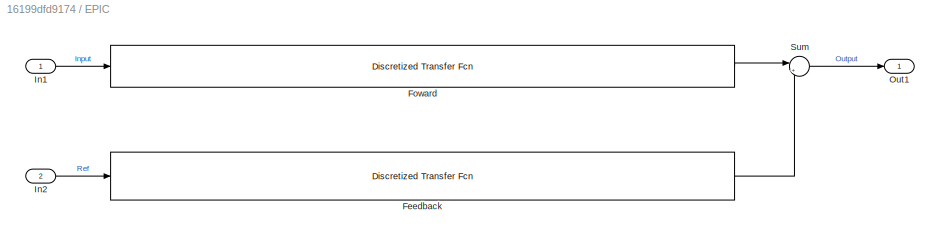
BLOCK [SubSystem] EPIC
  Ports = [2, 1]
  RequestExecContextInheritance = off
  ShowPortLabels = SignalName
BLOCK [Reference] EPIC/Feedback  REF=discretizing/Discretized  (lib defined in mdl_5048aa1cd587)
Transfer Fcn
  Ports = [1, 1]
  SourceBlock = discretizing/Discretized\nTransfer Fcn
  SourceType = DiscretizedTransferFcn
BLOCK [Reference] EPIC/Foward  REF=discretizing/Discretized  (lib defined in mdl_5048aa1cd587)
Transfer Fcn
  Ports = [1, 1]
  SourceBlock = discretizing/Discretized\nTransfer Fcn
  SourceType = DiscretizedTransferFcn
BLOCK [Inport] EPIC/In1
  IconDisplay = Port number
BLOCK [Inport] EPIC/In2
  IconDisplay = Port number
  Port = 2
BLOCK [Outport] EPIC/Out1
  IconDisplay = Port number
BLOCK [Sum] EPIC/Sum
  IconShape = round
  InputSameDT = off
  Inputs = |++
  OutDataTypeStr = Inherit: Inherit via internal rule
  OutMax = [100]
  OutMin = [-100]
  Ports = [2, 1]
  SaturateOnIntegerOverflow = off
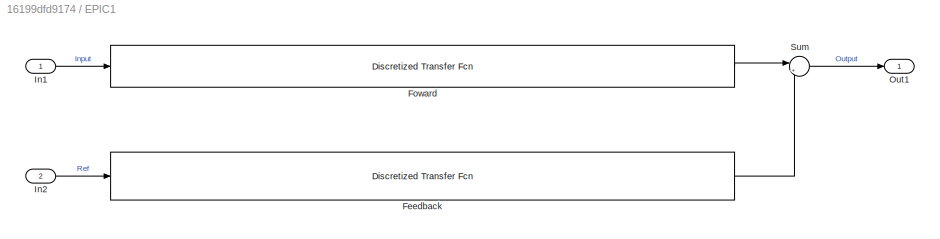
BLOCK [SubSystem] EPIC1
  Ports = [2, 1]
  RequestExecContextInheritance = off
  ShowPortLabels = SignalName
BLOCK [Reference] EPIC1/Feedback  REF=discretizing/Discretized  (lib defined in mdl_5048aa1cd587)
Transfer Fcn
  Ports = [1, 1]
  SourceBlock = discretizing/Discretized\nTransfer Fcn
  SourceType = DiscretizedTransferFcn
BLOCK [Reference] EPIC1/Foward  REF=discretizing/Discretized  (lib defined in mdl_5048aa1cd587)
Transfer Fcn
  Ports = [1, 1]
  SourceBlock = discretizing/Discretized\nTransfer Fcn
  SourceType = DiscretizedTransferFcn
BLOCK [Inport] EPIC1/In1
  IconDisplay = Port number
BLOCK [Inport] EPIC1/In2
  IconDisplay = Port number
  Port = 2
BLOCK [Outport] EPIC1/Out1
  IconDisplay = Port number
BLOCK [Sum] EPIC1/Sum
  IconShape = round
  InputSameDT = off
  Inputs = |++
  OutDataTypeStr = Inherit: Inherit via internal rule
  OutMax = [100]
  OutMin = [-100]
  Ports = [2, 1]
  SaturateOnIntegerOverflow = off
BLOCK [Reference] Feedback A  REF=discretizing/Discretized  (lib defined in mdl_5048aa1cd587)
Transfer Fcn
  Ports = [1, 1]
  SourceBlock = discretizing/Discretized\nTransfer Fcn
  SourceType = DiscretizedTransferFcn
BLOCK [Reference] Feedback B  REF=discretizing/Discretized  (lib defined in mdl_5048aa1cd587)
Transfer Fcn
  Ports = [1, 1]
  SourceBlock = discretizing/Discretized\nTransfer Fcn
  SourceType = DiscretizedTransferFcn
BLOCK [Gain] Gain
  Gain = -1
BLOCK [Gain] Gain1
  Gain = -1
BLOCK [Gain] PreGainA
  Gain = 10
  OutMax = 5
  OutMin = -5
BLOCK [Gain] PreGainB
  Gain = 10
  OutMax = 5
  OutMin = -5
BLOCK [Scope] Scope
  Floating = off
  NumInputPorts = 3
  Ports = [3]
  ScopeSpecificationString = Simulink.scopes.TimeScopeBlockCfg('CurrentConfiguration', extmgr.ConfigurationSet(extmgr.Configuration('Core','General UI',true),extmgr.Configuration('Core','Source UI',true),extmgr.Configuration('Sources','WiredSimulink',true,'DataLoggingVariableName','ScopeData2'),extmgr.Configuration('Visuals','Time Domain',true,'SerializedDisplays',{struct('MinYLimReal','-18.17879','MaxYLimReal','16.78827','YL...<+2103ch>
BLOCK [Scope] Sensor A
  Floating = off
  NumInputPorts = 3
  Ports = [3]
  ScopeSpecificationString = Simulink.scopes.TimeScopeBlockCfg('CurrentConfiguration', extmgr.ConfigurationSet(extmgr.Configuration('Core','General UI',true),extmgr.Configuration('Core','Source UI',true),extmgr.Configuration('Sources','WiredSimulink',true),extmgr.Configuration('Visuals','Time Domain',true,'SerializedDisplays',{struct('MinYLimReal','-0.50991','MaxYLimReal','0.50699','YLabelReal','','MinYLimMag','0.00000','MaxY...<+2832ch>
BLOCK [Scope] Sensor B
  Floating = off
  NumInputPorts = 3
  Ports = [3]
  ScopeSpecificationString = Simulink.scopes.TimeScopeBlockCfg('CurrentConfiguration', extmgr.ConfigurationSet(extmgr.Configuration('Core','General UI',true),extmgr.Configuration('Core','Source UI',true),extmgr.Configuration('Sources','WiredSimulink',true,'DataLoggingVariableName','ScopeData1'),extmgr.Configuration('Visuals','Time Domain',true,'SerializedDisplays',{struct('MinYLimReal','-0.50991','MaxYLimReal','0.50699','YLab...<+2871ch>
BLOCK [Sum] Subtract
  InputSameDT = off
  Inputs = +-
  OutDataTypeStr = Inherit: Inherit via internal rule
  Ports = [2, 1]
  SaturateOnIntegerOverflow = off
BLOCK [Sum] Sum
  IconShape = round
  InputSameDT = off
  Inputs = +++
  OutDataTypeStr = Inherit: Inherit via internal rule
  Ports = [3, 1]
  SaturateOnIntegerOverflow = off
BLOCK [Sum] Sum1
  IconShape = round
  InputSameDT = off
  Inputs = +-+
  OutDataTypeStr = Inherit: Inherit via internal rule
  Ports = [3, 1]
  SaturateOnIntegerOverflow = off
BLOCK [ToWorkspace] To Workspace
  FixptAsFi = on
  MaxDataPoints = inf
  Ports = [1]
  SampleTime = -1
  Save2DSignal = 3-D array (concatenate along third dimension)
  SaveFormat = Timeseries
  VariableName = TestingB
BLOCK [ToWorkspace] To Workspace1
  FixptAsFi = on
  MaxDataPoints = inf
  Ports = [1]
  SampleTime = -1
  Save2DSignal = 3-D array (concatenate along third dimension)
  SaveFormat = Timeseries
  VariableName = TestingA
BLOCK [UniformRandomNumber] White Noise
  Maximum = 0.1
  Minimum = -0.1
  SampleTime = 0.0001
  Seed = 523589
BLOCK [UniformRandomNumber] White Noise1
  Maximum = 0.1
  Minimum = -0.1
  SampleTime = 0.0001
ANNOTATION (root): Note: It is more likely that gaussian noise arround a central frequency is to be expected Note2: Explore wavelet denoising techniques Note3: Explore the Wiener filter for noise estimation
ANNOTATION (root): This Model assumes that -EMI between two electrodes can varry in phase and amplitude (models 90degree shift and delta 50mV) -All other noise sources are different between electrodes and can be modeled by Uniform White Noise
LINE 60Hz EMI1:1 -> Sum1:3
LINE 60Hz EMI:1 -> Sum:1
NET DigitalBandpass/Delay110:1 -> DigitalBandpass/Delay210:1, DigitalBandpass/a(2)(10):1
NET DigitalBandpass/Delay111:1 -> DigitalBandpass/Delay211:1, DigitalBandpass/a(2)(11):1
NET DigitalBandpass/Delay112:1 -> DigitalBandpass/Delay212:1, DigitalBandpass/a(2)(12):1
NET DigitalBandpass/Delay113:1 -> DigitalBandpass/Delay213:1, DigitalBandpass/a(2)(13):1
NET DigitalBandpass/Delay114:1 -> DigitalBandpass/Delay214:1, DigitalBandpass/a(2)(14):1
NET DigitalBandpass/Delay115:1 -> DigitalBandpass/Delay215:1, DigitalBandpass/a(2)(15):1
NET DigitalBandpass/Delay116:1 -> DigitalBandpass/Delay216:1, DigitalBandpass/a(2)(16):1
NET DigitalBandpass/Delay117:1 -> DigitalBandpass/Delay217:1, DigitalBandpass/a(2)(17):1
NET DigitalBandpass/Delay118:1 -> DigitalBandpass/Delay218:1, DigitalBandpass/a(2)(18):1
NET DigitalBandpass/Delay119:1 -> DigitalBandpass/Delay219:1, DigitalBandpass/a(2)(19):1
NET DigitalBandpass/Delay11:1 -> DigitalBandpass/Delay21:1, DigitalBandpass/a(2)(1):1
NET DigitalBandpass/Delay120:1 -> DigitalBandpass/Delay220:1, DigitalBandpass/a(2)(20):1
NET DigitalBandpass/Delay121:1 -> DigitalBandpass/Delay221:1, DigitalBandpass/a(2)(21):1
NET DigitalBandpass/Delay122:1 -> DigitalBandpass/Delay222:1, DigitalBandpass/a(2)(22):1
NET DigitalBandpass/Delay123:1 -> DigitalBandpass/Delay223:1, DigitalBandpass/a(2)(23):1
NET DigitalBandpass/Delay124:1 -> DigitalBandpass/Delay224:1, DigitalBandpass/a(2)(24):1
NET DigitalBandpass/Delay125:1 -> DigitalBandpass/Delay225:1, DigitalBandpass/a(2)(25):1
NET DigitalBandpass/Delay126:1 -> DigitalBandpass/Delay226:1, DigitalBandpass/a(2)(26):1
NET DigitalBandpass/Delay127:1 -> DigitalBandpass/Delay227:1, DigitalBandpass/a(2)(27):1
NET DigitalBandpass/Delay128:1 -> DigitalBandpass/Delay228:1, DigitalBandpass/a(2)(28):1
NET DigitalBandpass/Delay129:1 -> DigitalBandpass/Delay229:1, DigitalBandpass/a(2)(29):1
NET DigitalBandpass/Delay12:1 -> DigitalBandpass/Delay22:1, DigitalBandpass/a(2)(2):1
NET DigitalBandpass/Delay130:1 -> DigitalBandpass/Delay230:1, DigitalBandpass/a(2)(30):1
NET DigitalBandpass/Delay131:1 -> DigitalBandpass/Delay231:1, DigitalBandpass/a(2)(31):1
NET DigitalBandpass/Delay132:1 -> DigitalBandpass/Delay232:1, DigitalBandpass/a(2)(32):1
NET DigitalBandpass/Delay133:1 -> DigitalBandpass/Delay233:1, DigitalBandpass/a(2)(33):1
NET DigitalBandpass/Delay13:1 -> DigitalBandpass/Delay23:1, DigitalBandpass/a(2)(3):1
NET DigitalBandpass/Delay14:1 -> DigitalBandpass/Delay24:1, DigitalBandpass/a(2)(4):1
NET DigitalBandpass/Delay15:1 -> DigitalBandpass/Delay25:1, DigitalBandpass/a(2)(5):1
NET DigitalBandpass/Delay16:1 -> DigitalBandpass/Delay26:1, DigitalBandpass/a(2)(6):1
NET DigitalBandpass/Delay17:1 -> DigitalBandpass/Delay27:1, DigitalBandpass/a(2)(7):1
NET DigitalBandpass/Delay18:1 -> DigitalBandpass/Delay28:1, DigitalBandpass/a(2)(8):1
NET DigitalBandpass/Delay19:1 -> DigitalBandpass/Delay29:1, DigitalBandpass/a(2)(9):1
NET DigitalBandpass/Delay210:1 -> DigitalBandpass/SumB310:2, DigitalBandpass/a(3)(10):1
NET DigitalBandpass/Delay211:1 -> DigitalBandpass/SumB311:2, DigitalBandpass/a(3)(11):1
NET DigitalBandpass/Delay212:1 -> DigitalBandpass/SumB312:2, DigitalBandpass/a(3)(12):1
NET DigitalBandpass/Delay213:1 -> DigitalBandpass/SumB313:2, DigitalBandpass/a(3)(13):1
NET DigitalBandpass/Delay214:1 -> DigitalBandpass/SumB314:2, DigitalBandpass/a(3)(14):1
NET DigitalBandpass/Delay215:1 -> DigitalBandpass/SumB315:2, DigitalBandpass/a(3)(15):1
NET DigitalBandpass/Delay216:1 -> DigitalBandpass/SumB316:2, DigitalBandpass/a(3)(16):1
NET DigitalBandpass/Delay217:1 -> DigitalBandpass/SumB317:2, DigitalBandpass/a(3)(17):1
NET DigitalBandpass/Delay218:1 -> DigitalBandpass/SumB318:2, DigitalBandpass/a(3)(18):1
NET DigitalBandpass/Delay219:1 -> DigitalBandpass/SumB319:2, DigitalBandpass/a(3)(19):1
NET DigitalBandpass/Delay21:1 -> DigitalBandpass/SumB31:2, DigitalBandpass/a(3)(1):1
NET DigitalBandpass/Delay220:1 -> DigitalBandpass/SumB320:2, DigitalBandpass/a(3)(20):1
NET DigitalBandpass/Delay221:1 -> DigitalBandpass/SumB321:2, DigitalBandpass/a(3)(21):1
NET DigitalBandpass/Delay222:1 -> DigitalBandpass/SumB322:2, DigitalBandpass/a(3)(22):1
NET DigitalBandpass/Delay223:1 -> DigitalBandpass/SumB323:2, DigitalBandpass/a(3)(23):1
NET DigitalBandpass/Delay224:1 -> DigitalBandpass/SumB324:2, DigitalBandpass/a(3)(24):1
NET DigitalBandpass/Delay225:1 -> DigitalBandpass/SumB325:2, DigitalBandpass/a(3)(25):1
NET DigitalBandpass/Delay226:1 -> DigitalBandpass/SumB326:2, DigitalBandpass/a(3)(26):1
NET DigitalBandpass/Delay227:1 -> DigitalBandpass/SumB327:2, DigitalBandpass/a(3)(27):1
NET DigitalBandpass/Delay228:1 -> DigitalBandpass/SumB328:2, DigitalBandpass/a(3)(28):1
NET DigitalBandpass/Delay229:1 -> DigitalBandpass/SumB329:2, DigitalBandpass/a(3)(29):1
NET DigitalBandpass/Delay22:1 -> DigitalBandpass/SumB32:2, DigitalBandpass/a(3)(2):1
NET DigitalBandpass/Delay230:1 -> DigitalBandpass/SumB330:2, DigitalBandpass/a(3)(30):1
NET DigitalBandpass/Delay231:1 -> DigitalBandpass/SumB331:2, DigitalBandpass/a(3)(31):1
NET DigitalBandpass/Delay232:1 -> DigitalBandpass/SumB332:2, DigitalBandpass/a(3)(32):1
NET DigitalBandpass/Delay233:1 -> DigitalBandpass/SumB333:2, DigitalBandpass/a(3)(33):1
NET DigitalBandpass/Delay23:1 -> DigitalBandpass/SumB33:2, DigitalBandpass/a(3)(3):1
NET DigitalBandpass/Delay24:1 -> DigitalBandpass/SumB34:2, DigitalBandpass/a(3)(4):1
NET DigitalBandpass/Delay25:1 -> DigitalBandpass/SumB35:2, DigitalBandpass/a(3)(5):1
NET DigitalBandpass/Delay26:1 -> DigitalBandpass/SumB36:2, DigitalBandpass/a(3)(6):1
NET DigitalBandpass/Delay27:1 -> DigitalBandpass/SumB37:2, DigitalBandpass/a(3)(7):1
NET DigitalBandpass/Delay28:1 -> DigitalBandpass/SumB38:2, DigitalBandpass/a(3)(8):1
NET DigitalBandpass/Delay29:1 -> DigitalBandpass/SumB39:2, DigitalBandpass/a(3)(9):1
LINE DigitalBandpass/Input:1 -> DigitalBandpass/s(1):1
LINE DigitalBandpass/SectIn10:1 -> DigitalBandpass/s(10):1
LINE DigitalBandpass/SectIn11:1 -> DigitalBandpass/s(11):1
LINE DigitalBandpass/SectIn12:1 -> DigitalBandpass/s(12):1
LINE DigitalBandpass/SectIn13:1 -> DigitalBandpass/s(13):1
LINE DigitalBandpass/SectIn14:1 -> DigitalBandpass/s(14):1
LINE DigitalBandpass/SectIn15:1 -> DigitalBandpass/s(15):1
LINE DigitalBandpass/SectIn16:1 -> DigitalBandpass/s(16):1
LINE DigitalBandpass/SectIn17:1 -> DigitalBandpass/s(17):1
LINE DigitalBandpass/SectIn18:1 -> DigitalBandpass/s(18):1
LINE DigitalBandpass/SectIn19:1 -> DigitalBandpass/s(19):1
LINE DigitalBandpass/SectIn20:1 -> DigitalBandpass/s(20):1
LINE DigitalBandpass/SectIn21:1 -> DigitalBandpass/s(21):1
LINE DigitalBandpass/SectIn22:1 -> DigitalBandpass/s(22):1
LINE DigitalBandpass/SectIn23:1 -> DigitalBandpass/s(23):1
LINE DigitalBandpass/SectIn24:1 -> DigitalBandpass/s(24):1
LINE DigitalBandpass/SectIn25:1 -> DigitalBandpass/s(25):1
LINE DigitalBandpass/SectIn26:1 -> DigitalBandpass/s(26):1
LINE DigitalBandpass/SectIn27:1 -> DigitalBandpass/s(27):1
LINE DigitalBandpass/SectIn28:1 -> DigitalBandpass/s(28):1
LINE DigitalBandpass/SectIn29:1 -> DigitalBandpass/s(29):1
LINE DigitalBandpass/SectIn2:1 -> DigitalBandpass/s(2):1
LINE DigitalBandpass/SectIn30:1 -> DigitalBandpass/s(30):1
LINE DigitalBandpass/SectIn31:1 -> DigitalBandpass/s(31):1
LINE DigitalBandpass/SectIn32:1 -> DigitalBandpass/s(32):1
LINE DigitalBandpass/SectIn33:1 -> DigitalBandpass/s(33):1
LINE DigitalBandpass/SectIn3:1 -> DigitalBandpass/s(3):1
LINE DigitalBandpass/SectIn4:1 -> DigitalBandpass/s(4):1
LINE DigitalBandpass/SectIn5:1 -> DigitalBandpass/s(5):1
LINE DigitalBandpass/SectIn6:1 -> DigitalBandpass/s(6):1
LINE DigitalBandpass/SectIn7:1 -> DigitalBandpass/s(7):1
LINE DigitalBandpass/SectIn8:1 -> DigitalBandpass/s(8):1
LINE DigitalBandpass/SectIn9:1 -> DigitalBandpass/s(9):1
LINE DigitalBandpass/SumA210:1 -> DigitalBandpass/SumA310:1
LINE DigitalBandpass/SumA211:1 -> DigitalBandpass/SumA311:1
LINE DigitalBandpass/SumA212:1 -> DigitalBandpass/SumA312:1
LINE DigitalBandpass/SumA213:1 -> DigitalBandpass/SumA313:1
LINE DigitalBandpass/SumA214:1 -> DigitalBandpass/SumA314:1
LINE DigitalBandpass/SumA215:1 -> DigitalBandpass/SumA315:1
LINE DigitalBandpass/SumA216:1 -> DigitalBandpass/SumA316:1
LINE DigitalBandpass/SumA217:1 -> DigitalBandpass/SumA317:1
LINE DigitalBandpass/SumA218:1 -> DigitalBandpass/SumA318:1
LINE DigitalBandpass/SumA219:1 -> DigitalBandpass/SumA319:1
LINE DigitalBandpass/SumA21:1 -> DigitalBandpass/SumA31:1
LINE DigitalBandpass/SumA220:1 -> DigitalBandpass/SumA320:1
LINE DigitalBandpass/SumA221:1 -> DigitalBandpass/SumA321:1
LINE DigitalBandpass/SumA222:1 -> DigitalBandpass/SumA322:1
LINE DigitalBandpass/SumA223:1 -> DigitalBandpass/SumA323:1
LINE DigitalBandpass/SumA224:1 -> DigitalBandpass/SumA324:1
LINE DigitalBandpass/SumA225:1 -> DigitalBandpass/SumA325:1
LINE DigitalBandpass/SumA226:1 -> DigitalBandpass/SumA326:1
LINE DigitalBandpass/SumA227:1 -> DigitalBandpass/SumA327:1
LINE DigitalBandpass/SumA228:1 -> DigitalBandpass/SumA328:1
LINE DigitalBandpass/SumA229:1 -> DigitalBandpass/SumA329:1
LINE DigitalBandpass/SumA22:1 -> DigitalBandpass/SumA32:1
LINE DigitalBandpass/SumA230:1 -> DigitalBandpass/SumA330:1
LINE DigitalBandpass/SumA231:1 -> DigitalBandpass/SumA331:1
LINE DigitalBandpass/SumA232:1 -> DigitalBandpass/SumA332:1
LINE DigitalBandpass/SumA233:1 -> DigitalBandpass/SumA333:1
LINE DigitalBandpass/SumA23:1 -> DigitalBandpass/SumA33:1
LINE DigitalBandpass/SumA24:1 -> DigitalBandpass/SumA34:1
LINE DigitalBandpass/SumA25:1 -> DigitalBandpass/SumA35:1
LINE DigitalBandpass/SumA26:1 -> DigitalBandpass/SumA36:1
LINE DigitalBandpass/SumA27:1 -> DigitalBandpass/SumA37:1
LINE DigitalBandpass/SumA28:1 -> DigitalBandpass/SumA38:1
LINE DigitalBandpass/SumA29:1 -> DigitalBandpass/SumA39:1
NET DigitalBandpass/SumA310:1 -> DigitalBandpass/Delay110:1, DigitalBandpass/SumB310:1
NET DigitalBandpass/SumA311:1 -> DigitalBandpass/Delay111:1, DigitalBandpass/SumB311:1
NET DigitalBandpass/SumA312:1 -> DigitalBandpass/Delay112:1, DigitalBandpass/SumB312:1
NET DigitalBandpass/SumA313:1 -> DigitalBandpass/Delay113:1, DigitalBandpass/SumB313:1
NET DigitalBandpass/SumA314:1 -> DigitalBandpass/Delay114:1, DigitalBandpass/SumB314:1
NET DigitalBandpass/SumA315:1 -> DigitalBandpass/Delay115:1, DigitalBandpass/SumB315:1
NET DigitalBandpass/SumA316:1 -> DigitalBandpass/Delay116:1, DigitalBandpass/SumB316:1
NET DigitalBandpass/SumA317:1 -> DigitalBandpass/Delay117:1, DigitalBandpass/SumB317:1
NET DigitalBandpass/SumA318:1 -> DigitalBandpass/Delay118:1, DigitalBandpass/SumB318:1
NET DigitalBandpass/SumA319:1 -> DigitalBandpass/Delay119:1, DigitalBandpass/SumB319:1
NET DigitalBandpass/SumA31:1 -> DigitalBandpass/Delay11:1, DigitalBandpass/SumB31:1
NET DigitalBandpass/SumA320:1 -> DigitalBandpass/Delay120:1, DigitalBandpass/SumB320:1
NET DigitalBandpass/SumA321:1 -> DigitalBandpass/Delay121:1, DigitalBandpass/SumB321:1
NET DigitalBandpass/SumA322:1 -> DigitalBandpass/Delay122:1, DigitalBandpass/SumB322:1
NET DigitalBandpass/SumA323:1 -> DigitalBandpass/Delay123:1, DigitalBandpass/SumB323:1
NET DigitalBandpass/SumA324:1 -> DigitalBandpass/Delay124:1, DigitalBandpass/SumB324:1
NET DigitalBandpass/SumA325:1 -> DigitalBandpass/Delay125:1, DigitalBandpass/SumB325:1
NET DigitalBandpass/SumA326:1 -> DigitalBandpass/Delay126:1, DigitalBandpass/SumB326:1
NET DigitalBandpass/SumA327:1 -> DigitalBandpass/Delay127:1, DigitalBandpass/SumB327:1
NET DigitalBandpass/SumA328:1 -> DigitalBandpass/Delay128:1, DigitalBandpass/SumB328:1
NET DigitalBandpass/SumA329:1 -> DigitalBandpass/Delay129:1, DigitalBandpass/SumB329:1
NET DigitalBandpass/SumA32:1 -> DigitalBandpass/Delay12:1, DigitalBandpass/SumB32:1
NET DigitalBandpass/SumA330:1 -> DigitalBandpass/Delay130:1, DigitalBandpass/SumB330:1
NET DigitalBandpass/SumA331:1 -> DigitalBandpass/Delay131:1, DigitalBandpass/SumB331:1
NET DigitalBandpass/SumA332:1 -> DigitalBandpass/Delay132:1, DigitalBandpass/SumB332:1
NET DigitalBandpass/SumA333:1 -> DigitalBandpass/Delay133:1, DigitalBandpass/SumB333:1
NET DigitalBandpass/SumA33:1 -> DigitalBandpass/Delay13:1, DigitalBandpass/SumB33:1
NET DigitalBandpass/SumA34:1 -> DigitalBandpass/Delay14:1, DigitalBandpass/SumB34:1
NET DigitalBandpass/SumA35:1 -> DigitalBandpass/Delay15:1, DigitalBandpass/SumB35:1
NET DigitalBandpass/SumA36:1 -> DigitalBandpass/Delay16:1, DigitalBandpass/SumB36:1
NET DigitalBandpass/SumA37:1 -> DigitalBandpass/Delay17:1, DigitalBandpass/SumB37:1
NET DigitalBandpass/SumA38:1 -> DigitalBandpass/Delay18:1, DigitalBandpass/SumB38:1
NET DigitalBandpass/SumA39:1 -> DigitalBandpass/Delay19:1, DigitalBandpass/SumB39:1
LINE DigitalBandpass/SumB310:1 -> DigitalBandpass/SectOut10:1
LINE DigitalBandpass/SumB311:1 -> DigitalBandpass/SectOut11:1
LINE DigitalBandpass/SumB312:1 -> DigitalBandpass/SectOut12:1
LINE DigitalBandpass/SumB313:1 -> DigitalBandpass/SectOut13:1
LINE DigitalBandpass/SumB314:1 -> DigitalBandpass/SectOut14:1
LINE DigitalBandpass/SumB315:1 -> DigitalBandpass/SectOut15:1
LINE DigitalBandpass/SumB316:1 -> DigitalBandpass/SectOut16:1
LINE DigitalBandpass/SumB317:1 -> DigitalBandpass/SectOut17:1
LINE DigitalBandpass/SumB318:1 -> DigitalBandpass/SectOut18:1
LINE DigitalBandpass/SumB319:1 -> DigitalBandpass/SectOut19:1
LINE DigitalBandpass/SumB31:1 -> DigitalBandpass/SectOut1:1
LINE DigitalBandpass/SumB320:1 -> DigitalBandpass/SectOut20:1
LINE DigitalBandpass/SumB321:1 -> DigitalBandpass/SectOut21:1
LINE DigitalBandpass/SumB322:1 -> DigitalBandpass/SectOut22:1
LINE DigitalBandpass/SumB323:1 -> DigitalBandpass/SectOut23:1
LINE DigitalBandpass/SumB324:1 -> DigitalBandpass/SectOut24:1
LINE DigitalBandpass/SumB325:1 -> DigitalBandpass/SectOut25:1
LINE DigitalBandpass/SumB326:1 -> DigitalBandpass/SectOut26:1
LINE DigitalBandpass/SumB327:1 -> DigitalBandpass/SectOut27:1
LINE DigitalBandpass/SumB328:1 -> DigitalBandpass/SectOut28:1
LINE DigitalBandpass/SumB329:1 -> DigitalBandpass/SectOut29:1
LINE DigitalBandpass/SumB32:1 -> DigitalBandpass/SectOut2:1
LINE DigitalBandpass/SumB330:1 -> DigitalBandpass/SectOut30:1
LINE DigitalBandpass/SumB331:1 -> DigitalBandpass/SectOut31:1
LINE DigitalBandpass/SumB332:1 -> DigitalBandpass/SectOut32:1
LINE DigitalBandpass/SumB333:1 -> DigitalBandpass/Output:1
LINE DigitalBandpass/SumB33:1 -> DigitalBandpass/SectOut3:1
LINE DigitalBandpass/SumB34:1 -> DigitalBandpass/SectOut4:1
LINE DigitalBandpass/SumB35:1 -> DigitalBandpass/SectOut5:1
LINE DigitalBandpass/SumB36:1 -> DigitalBandpass/SectOut6:1
LINE DigitalBandpass/SumB37:1 -> DigitalBandpass/SectOut7:1
LINE DigitalBandpass/SumB38:1 -> DigitalBandpass/SectOut8:1
LINE DigitalBandpass/SumB39:1 -> DigitalBandpass/SectOut9:1
LINE DigitalBandpass/a(2)(1):1 -> DigitalBandpass/SumA21:2
LINE DigitalBandpass/a(2)(10):1 -> DigitalBandpass/SumA210:2
LINE DigitalBandpass/a(2)(11):1 -> DigitalBandpass/SumA211:2
LINE DigitalBandpass/a(2)(12):1 -> DigitalBandpass/SumA212:2
LINE DigitalBandpass/a(2)(13):1 -> DigitalBandpass/SumA213:2
LINE DigitalBandpass/a(2)(14):1 -> DigitalBandpass/SumA214:2
LINE DigitalBandpass/a(2)(15):1 -> DigitalBandpass/SumA215:2
LINE DigitalBandpass/a(2)(16):1 -> DigitalBandpass/SumA216:2
LINE DigitalBandpass/a(2)(17):1 -> DigitalBandpass/SumA217:2
LINE DigitalBandpass/a(2)(18):1 -> DigitalBandpass/SumA218:2
LINE DigitalBandpass/a(2)(19):1 -> DigitalBandpass/SumA219:2
LINE DigitalBandpass/a(2)(2):1 -> DigitalBandpass/SumA22:2
LINE DigitalBandpass/a(2)(20):1 -> DigitalBandpass/SumA220:2
LINE DigitalBandpass/a(2)(21):1 -> DigitalBandpass/SumA221:2
LINE DigitalBandpass/a(2)(22):1 -> DigitalBandpass/SumA222:2
LINE DigitalBandpass/a(2)(23):1 -> DigitalBandpass/SumA223:2
LINE DigitalBandpass/a(2)(24):1 -> DigitalBandpass/SumA224:2
LINE DigitalBandpass/a(2)(25):1 -> DigitalBandpass/SumA225:2
LINE DigitalBandpass/a(2)(26):1 -> DigitalBandpass/SumA226:2
LINE DigitalBandpass/a(2)(27):1 -> DigitalBandpass/SumA227:2
LINE DigitalBandpass/a(2)(28):1 -> DigitalBandpass/SumA228:2
LINE DigitalBandpass/a(2)(29):1 -> DigitalBandpass/SumA229:2
LINE DigitalBandpass/a(2)(3):1 -> DigitalBandpass/SumA23:2
LINE DigitalBandpass/a(2)(30):1 -> DigitalBandpass/SumA230:2
LINE DigitalBandpass/a(2)(31):1 -> DigitalBandpass/SumA231:2
LINE DigitalBandpass/a(2)(32):1 -> DigitalBandpass/SumA232:2
LINE DigitalBandpass/a(2)(33):1 -> DigitalBandpass/SumA233:2
LINE DigitalBandpass/a(2)(4):1 -> DigitalBandpass/SumA24:2
LINE DigitalBandpass/a(2)(5):1 -> DigitalBandpass/SumA25:2
LINE DigitalBandpass/a(2)(6):1 -> DigitalBandpass/SumA26:2
LINE DigitalBandpass/a(2)(7):1 -> DigitalBandpass/SumA27:2
LINE DigitalBandpass/a(2)(8):1 -> DigitalBandpass/SumA28:2
LINE DigitalBandpass/a(2)(9):1 -> DigitalBandpass/SumA29:2
LINE DigitalBandpass/a(3)(1):1 -> DigitalBandpass/SumA31:2
LINE DigitalBandpass/a(3)(10):1 -> DigitalBandpass/SumA310:2
LINE DigitalBandpass/a(3)(11):1 -> DigitalBandpass/SumA311:2
LINE DigitalBandpass/a(3)(12):1 -> DigitalBandpass/SumA312:2
LINE DigitalBandpass/a(3)(13):1 -> DigitalBandpass/SumA313:2
LINE DigitalBandpass/a(3)(14):1 -> DigitalBandpass/SumA314:2
LINE DigitalBandpass/a(3)(15):1 -> DigitalBandpass/SumA315:2
LINE DigitalBandpass/a(3)(16):1 -> DigitalBandpass/SumA316:2
LINE DigitalBandpass/a(3)(17):1 -> DigitalBandpass/SumA317:2
LINE DigitalBandpass/a(3)(18):1 -> DigitalBandpass/SumA318:2
LINE DigitalBandpass/a(3)(19):1 -> DigitalBandpass/SumA319:2
LINE DigitalBandpass/a(3)(2):1 -> DigitalBandpass/SumA32:2
LINE DigitalBandpass/a(3)(20):1 -> DigitalBandpass/SumA320:2
LINE DigitalBandpass/a(3)(21):1 -> DigitalBandpass/SumA321:2
LINE DigitalBandpass/a(3)(22):1 -> DigitalBandpass/SumA322:2
LINE DigitalBandpass/a(3)(23):1 -> DigitalBandpass/SumA323:2
LINE DigitalBandpass/a(3)(24):1 -> DigitalBandpass/SumA324:2
LINE DigitalBandpass/a(3)(25):1 -> DigitalBandpass/SumA325:2
LINE DigitalBandpass/a(3)(26):1 -> DigitalBandpass/SumA326:2
LINE DigitalBandpass/a(3)(27):1 -> DigitalBandpass/SumA327:2
LINE DigitalBandpass/a(3)(28):1 -> DigitalBandpass/SumA328:2
LINE DigitalBandpass/a(3)(29):1 -> DigitalBandpass/SumA329:2
LINE DigitalBandpass/a(3)(3):1 -> DigitalBandpass/SumA33:2
LINE DigitalBandpass/a(3)(30):1 -> DigitalBandpass/SumA330:2
LINE DigitalBandpass/a(3)(31):1 -> DigitalBandpass/SumA331:2
LINE DigitalBandpass/a(3)(32):1 -> DigitalBandpass/SumA332:2
LINE DigitalBandpass/a(3)(33):1 -> DigitalBandpass/SumA333:2
LINE DigitalBandpass/a(3)(4):1 -> DigitalBandpass/SumA34:2
LINE DigitalBandpass/a(3)(5):1 -> DigitalBandpass/SumA35:2
LINE DigitalBandpass/a(3)(6):1 -> DigitalBandpass/SumA36:2
LINE DigitalBandpass/a(3)(7):1 -> DigitalBandpass/SumA37:2
LINE DigitalBandpass/a(3)(8):1 -> DigitalBandpass/SumA38:2
LINE DigitalBandpass/a(3)(9):1 -> DigitalBandpass/SumA39:2
LINE DigitalBandpass/s(1):1 -> DigitalBandpass/SumA21:1
LINE DigitalBandpass/s(10):1 -> DigitalBandpass/SumA210:1
LINE DigitalBandpass/s(11):1 -> DigitalBandpass/SumA211:1
LINE DigitalBandpass/s(12):1 -> DigitalBandpass/SumA212:1
LINE DigitalBandpass/s(13):1 -> DigitalBandpass/SumA213:1
LINE DigitalBandpass/s(14):1 -> DigitalBandpass/SumA214:1
LINE DigitalBandpass/s(15):1 -> DigitalBandpass/SumA215:1
LINE DigitalBandpass/s(16):1 -> DigitalBandpass/SumA216:1
LINE DigitalBandpass/s(17):1 -> DigitalBandpass/SumA217:1
LINE DigitalBandpass/s(18):1 -> DigitalBandpass/SumA218:1
LINE DigitalBandpass/s(19):1 -> DigitalBandpass/SumA219:1
LINE DigitalBandpass/s(2):1 -> DigitalBandpass/SumA22:1
LINE DigitalBandpass/s(20):1 -> DigitalBandpass/SumA220:1
LINE DigitalBandpass/s(21):1 -> DigitalBandpass/SumA221:1
LINE DigitalBandpass/s(22):1 -> DigitalBandpass/SumA222:1
LINE DigitalBandpass/s(23):1 -> DigitalBandpass/SumA223:1
LINE DigitalBandpass/s(24):1 -> DigitalBandpass/SumA224:1
LINE DigitalBandpass/s(25):1 -> DigitalBandpass/SumA225:1
LINE DigitalBandpass/s(26):1 -> DigitalBandpass/SumA226:1
LINE DigitalBandpass/s(27):1 -> DigitalBandpass/SumA227:1
LINE DigitalBandpass/s(28):1 -> DigitalBandpass/SumA228:1
LINE DigitalBandpass/s(29):1 -> DigitalBandpass/SumA229:1
LINE DigitalBandpass/s(3):1 -> DigitalBandpass/SumA23:1
LINE DigitalBandpass/s(30):1 -> DigitalBandpass/SumA230:1
LINE DigitalBandpass/s(31):1 -> DigitalBandpass/SumA231:1
LINE DigitalBandpass/s(32):1 -> DigitalBandpass/SumA232:1
LINE DigitalBandpass/s(33):1 -> DigitalBandpass/SumA233:1
LINE DigitalBandpass/s(4):1 -> DigitalBandpass/SumA24:1
LINE DigitalBandpass/s(5):1 -> DigitalBandpass/SumA25:1
LINE DigitalBandpass/s(6):1 -> DigitalBandpass/SumA26:1
LINE DigitalBandpass/s(7):1 -> DigitalBandpass/SumA27:1
LINE DigitalBandpass/s(8):1 -> DigitalBandpass/SumA28:1
LINE DigitalBandpass/s(9):1 -> DigitalBandpass/SumA29:1
LINE DigitalBandpass:1 -> Scope:2
LINE ECG1:1 -> Sum1:2
LINE ECG:1 -> Sum:2
LINE EPIC/Feedback:1 -> EPIC/Sum:2
LINE EPIC/Foward:1 -> EPIC/Sum:1
LINE EPIC/In1:1 -> EPIC/Foward:1
LINE EPIC/In2:1 -> EPIC/Feedback:1
LINE EPIC/Sum:1 -> EPIC/Out1:1
LINE EPIC1/Feedback:1 -> EPIC1/Sum:2
LINE EPIC1/Foward:1 -> EPIC1/Sum:1
LINE EPIC1/In1:1 -> EPIC1/Foward:1
LINE EPIC1/In2:1 -> EPIC1/Feedback:1
LINE EPIC1/Sum:1 -> EPIC1/Out1:1
LINE EPIC1:1 -> PreGainB:1
LINE EPIC:1 -> PreGainA:1
LINE Feedback A:1 -> Gain:1
LINE Feedback B:1 -> Gain1:1
NET Gain1:1 -> EPIC1:2, Sensor B:3
NET Gain:1 -> EPIC:2, Sensor A:3
NET PreGainA:1 -> Feedback A:1, Sensor A:2, Subtract:1, To Workspace1:1
NET PreGainB:1 -> DigitalBandpass:1, Feedback B:1, Sensor B:2, Subtract:2, To Workspace:1
LINE Subtract:1 -> Scope:1
NET Sum1:1 -> EPIC1:1, Sensor B:1
NET Sum:1 -> EPIC:1, Sensor A:1
LINE White Noise1:1 -> Sum1:1
LINE White Noise:1 -> Sum:3
note: NET lines group one-source signal fan-out (src -> all destinations, sorted); 1:1 wires keep LINE
